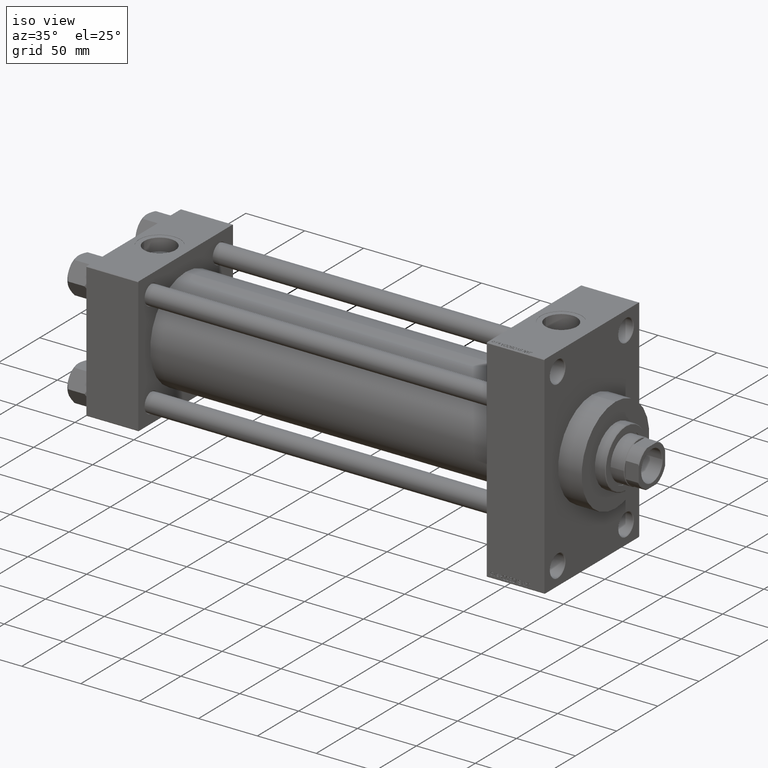
[diagram: clean part render]
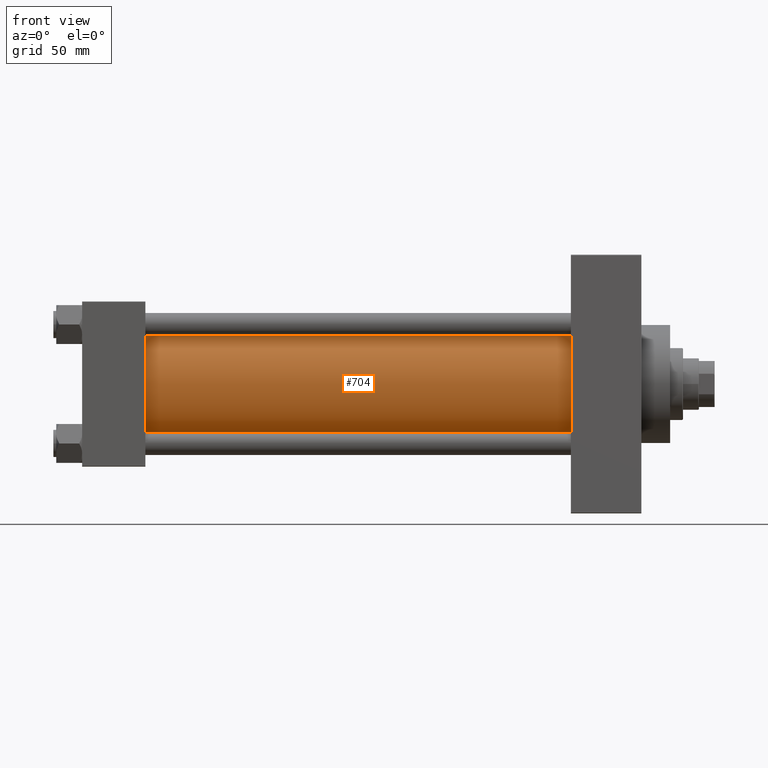
[diagram: tour spotlight — one face highlighted and labeled with its STEP entity id]
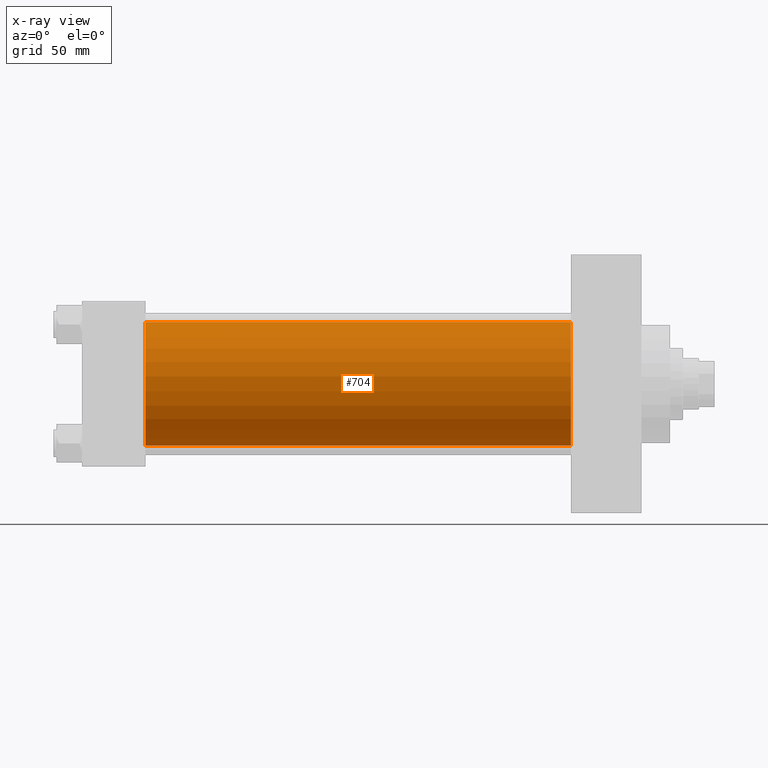
[diagram: x-ray of the same camera — body ghosted, this tour face saturated]
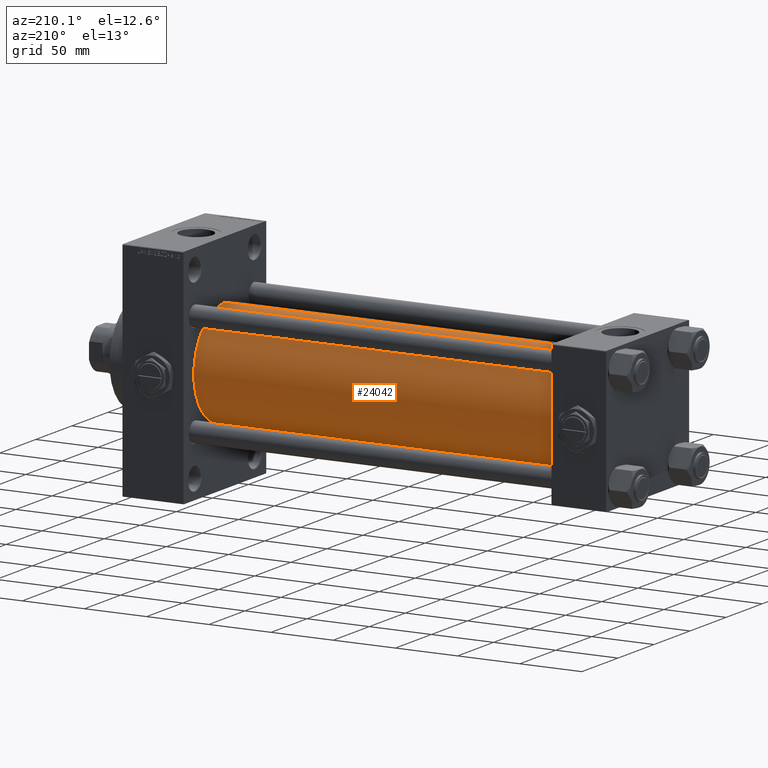
[diagram: tour spotlight — one face highlighted and labeled with its STEP entity id]
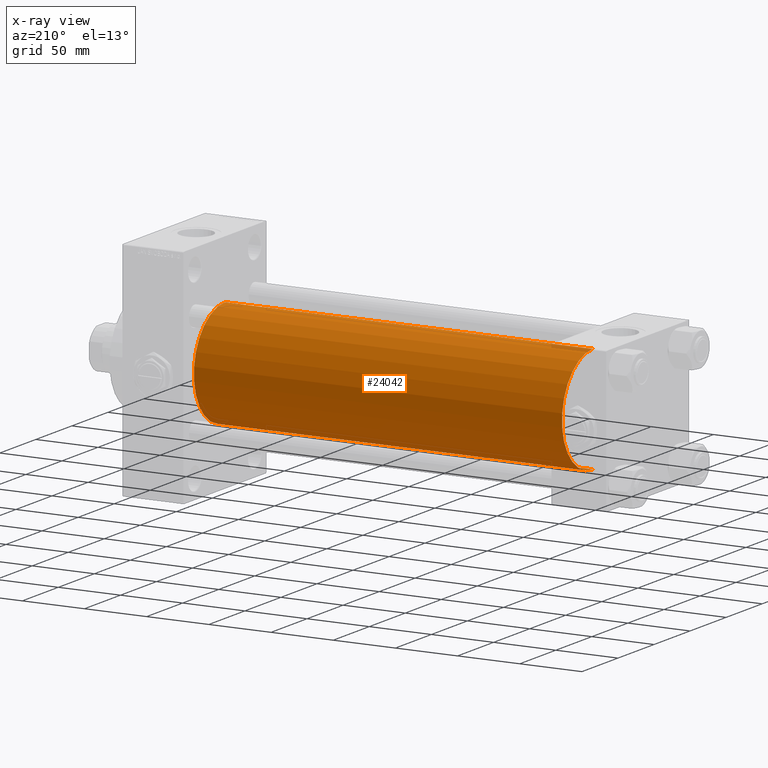
[diagram: x-ray of the same camera — body ghosted, this tour face saturated]
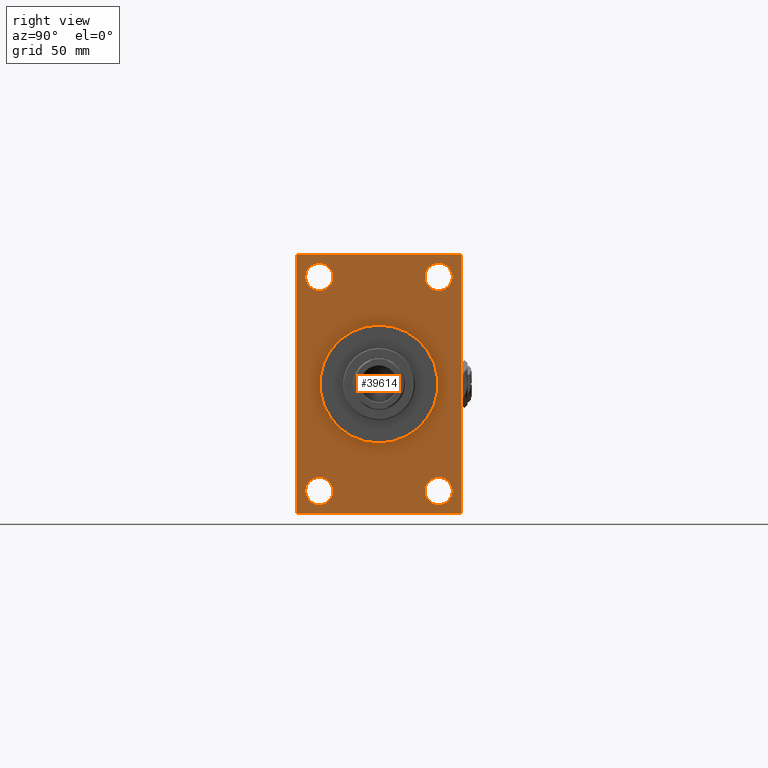
[diagram: tour spotlight — one face highlighted and labeled with its STEP entity id]
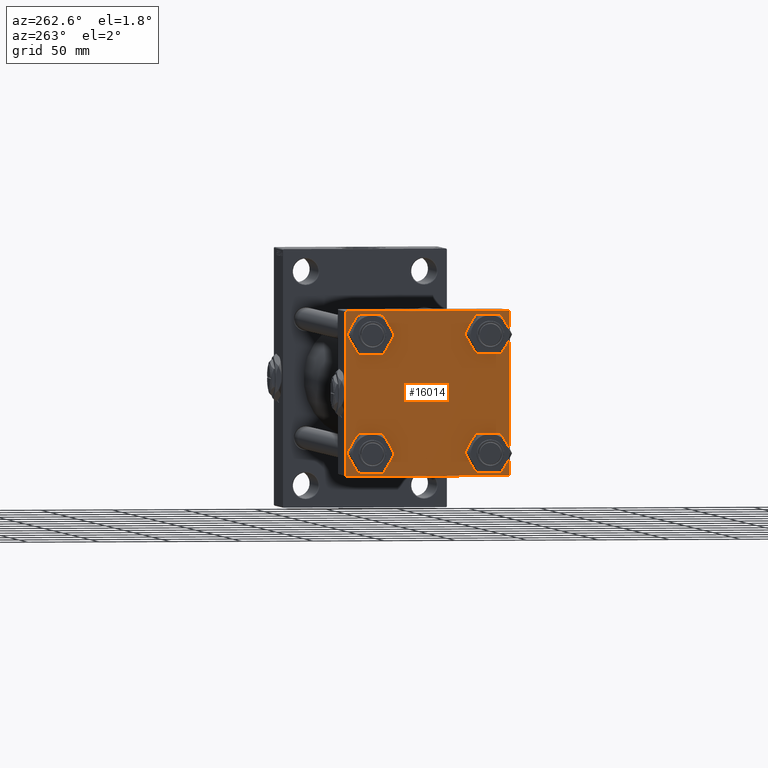
[diagram: tour spotlight — one face highlighted and labeled with its STEP entity id]
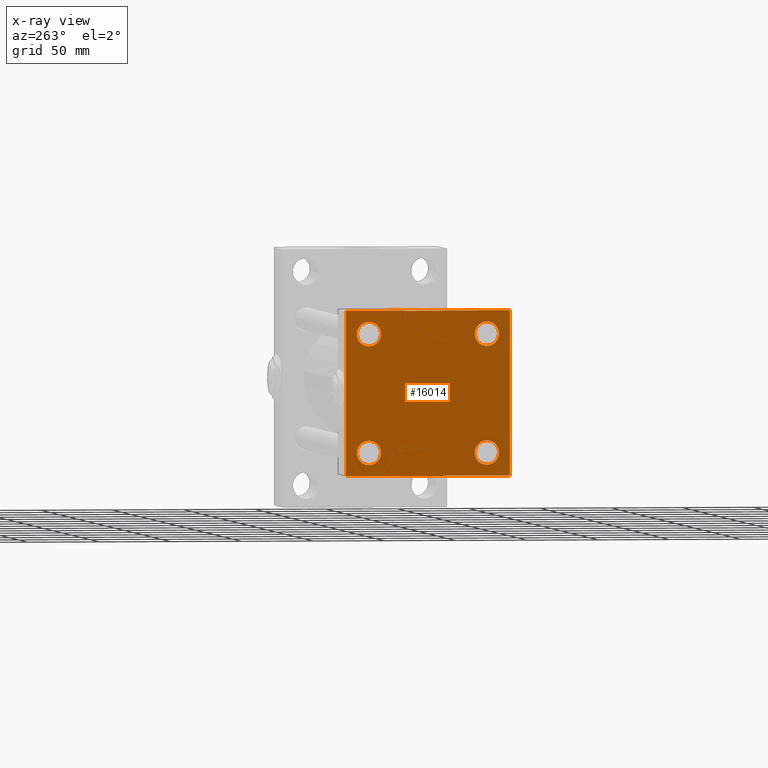
[diagram: x-ray of the same camera — body ghosted, this tour face saturated]
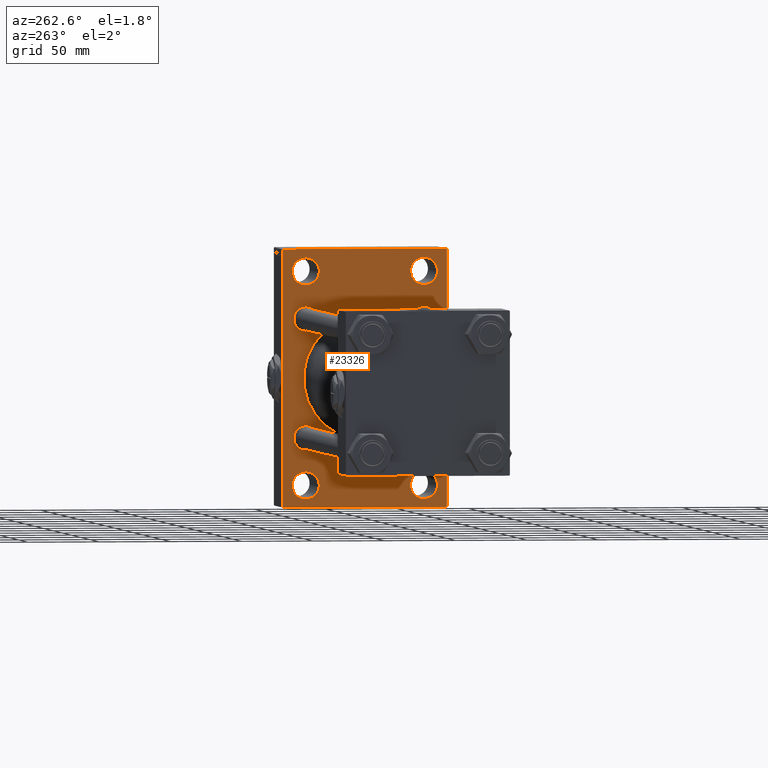
[diagram: tour spotlight — one face highlighted and labeled with its STEP entity id]
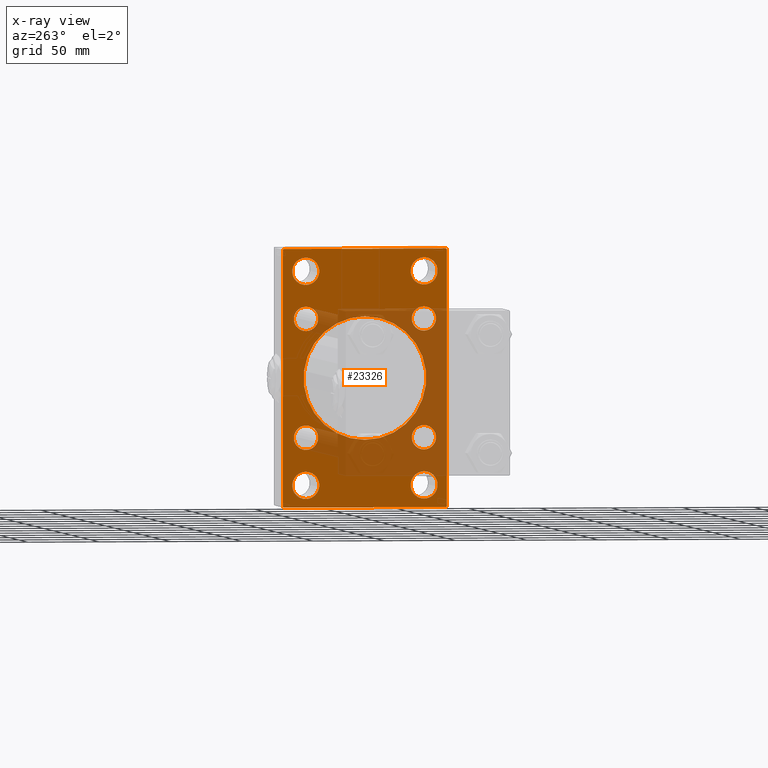
[diagram: x-ray of the same camera — body ghosted, this tour face saturated]
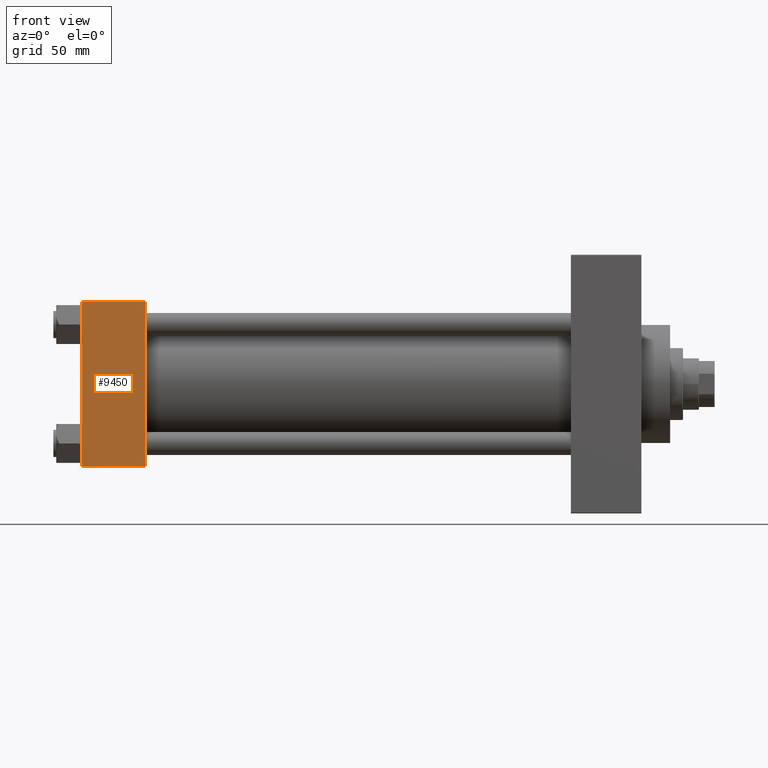
[diagram: tour spotlight — one face highlighted and labeled with its STEP entity id]
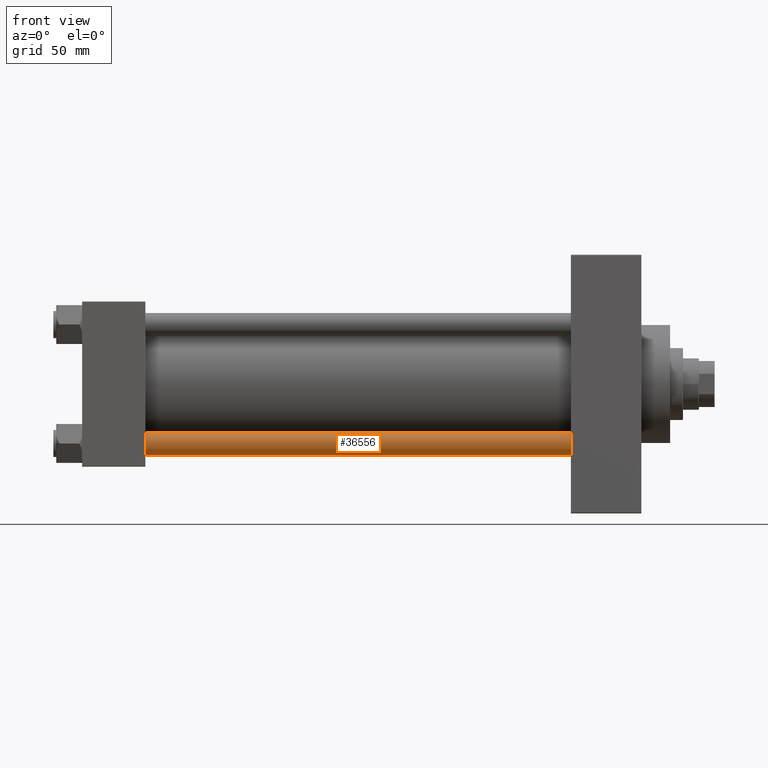
[diagram: tour spotlight — one face highlighted and labeled with its STEP entity id]
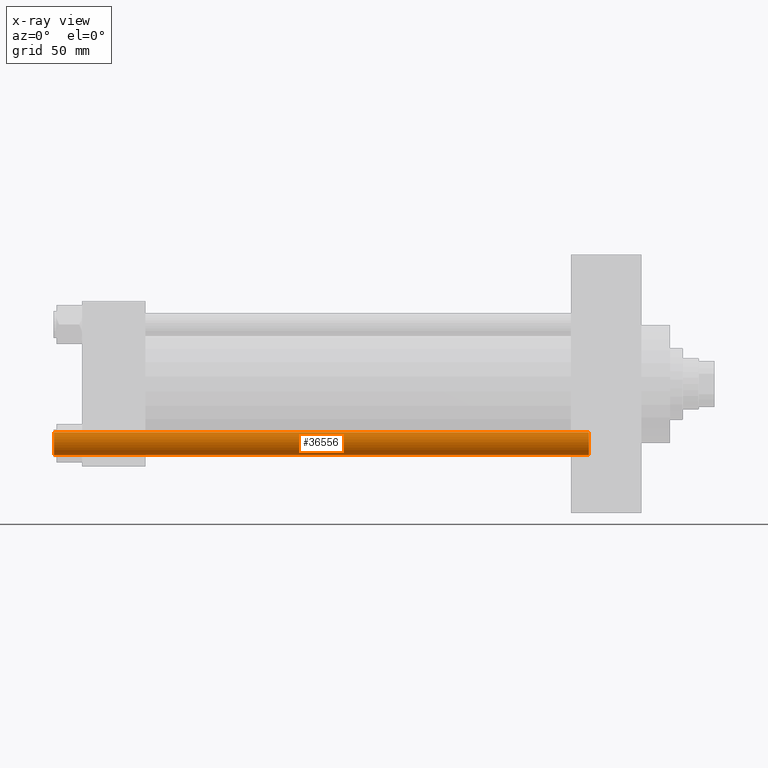
[diagram: x-ray of the same camera — body ghosted, this tour face saturated]
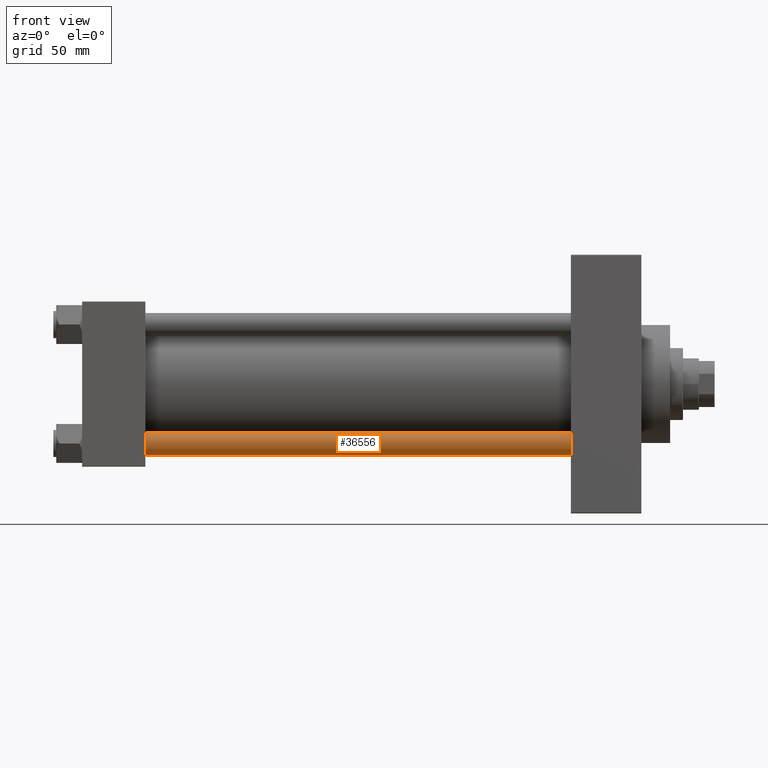
[diagram: tour spotlight — one face highlighted and labeled with its STEP entity id]
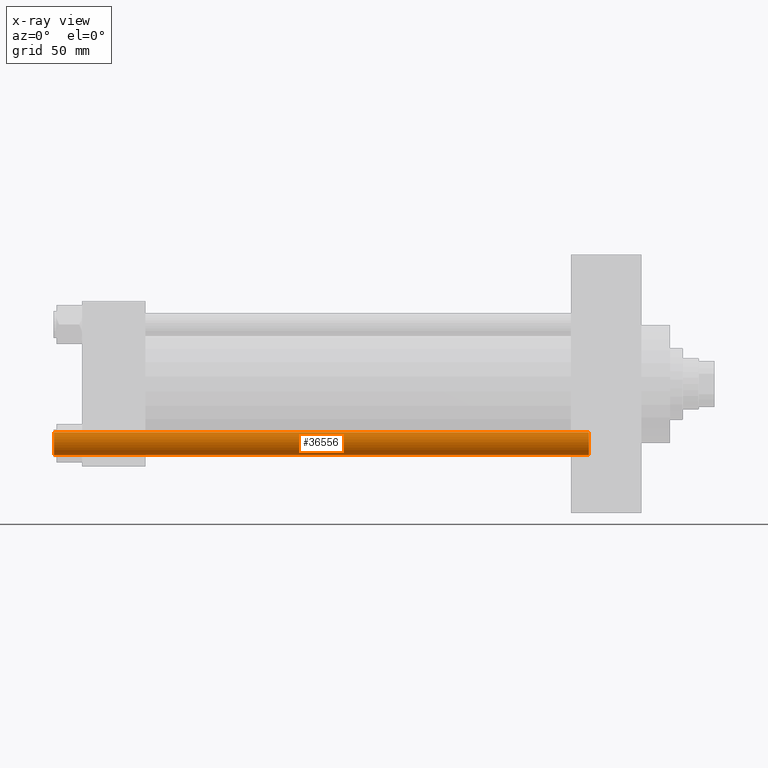
[diagram: x-ray of the same camera — body ghosted, this tour face saturated]
A machine part: a face-by-face anatomy tour. The part has 1252 B-rep faces; the first image is the clean iso view, then the 8 largest visible faces are spotlighted one at a time (largest first), each with its STEP entity span.

Face 1 — front view, entity #704. An x-ray twin of the same camera follows (body ghosted, this face saturated) — the face is partly hidden behind the body. In plain terms, the highlighted cylindrical surface (partial cylindrical patch) has radius 43 mm, axis along (-1, -0, -0).
Definition (entity closure, byte-faithful):
#696 = CARTESIAN_POINT ( 'NONE',  ( 339.9999999999999432, 2.663896022368408223E-15, -43.00000000000000000 ) ) ;
#704 = ADVANCED_FACE ( 'NONE', ( #40635 ), #10173, .T. ) ;
#1099 = CARTESIAN_POINT ( 'NONE',  ( 43.99999999999998579, -2.602085213965210642E-15, 0.000000000000000000 ) ) ;
#7237 = EDGE_CURVE ( 'NONE', #23898, #33211, #13362, .T. ) ;
#7978 = VERTEX_POINT ( 'NONE', #18108 ) ;
#9923 = DIRECTION ( 'NONE',  ( -1.000000000000000000, -0.000000000000000000, -0.000000000000000000 ) ) ;
#10173 = CYLINDRICAL_SURFACE ( 'NONE', #31004, 43.00000000000000000 ) ;
#10623 = CARTESIAN_POINT ( 'NONE',  ( 43.99999999999998579, 2.663896022368408223E-15, -43.00000000000000000 ) ) ;
#13362 = CIRCLE ( 'NONE', #25439, 43.00000000000000000 ) ;
#14534 = EDGE_CURVE ( 'NONE', #7978, #23898, #49542, .T. ) ;
#15099 = EDGE_LOOP ( 'NONE', ( #22846, #24336, #39010, #23355 ) ) ;
#16071 = DIRECTION ( 'NONE',  ( -1.000000000000000000, -0.000000000000000000, -0.000000000000000000 ) ) ;
#16479 = DIRECTION ( 'NONE',  ( 0.000000000000000000, 0.000000000000000000, 1.000000000000000000 ) ) ;
#16982 = DIRECTION ( 'NONE',  ( 1.000000000000000000, -0.000000000000000000, 0.000000000000000000 ) ) ;
#17241 = CARTESIAN_POINT ( 'NONE',  ( 339.9999999999999432, -2.602085213965210642E-15, 0.000000000000000000 ) ) ;
#18108 = CARTESIAN_POINT ( 'NONE',  ( 339.9999999999999432, -2.602085213965210642E-15, 43.00000000000000000 ) ) ;
#18816 = AXIS2_PLACEMENT_3D ( 'NONE', #26537, #33333, #48674 ) ;
#21125 = VECTOR ( 'NONE', #16071, 1000.000000000000000 ) ;
#22846 = ORIENTED_EDGE ( 'NONE', *, *, #28699, .F. ) ;
#23355 = ORIENTED_EDGE ( 'NONE', *, *, #7237, .T. ) ;
#23898 = VERTEX_POINT ( 'NONE', #28510 ) ;
#24085 = VERTEX_POINT ( 'NONE', #36490 ) ;
#24336 = ORIENTED_EDGE ( 'NONE', *, *, #40849, .F. ) ;
#25439 = AXIS2_PLACEMENT_3D ( 'NONE', #1099, #16982, #16479 ) ;
#26537 = CARTESIAN_POINT ( 'NONE',  ( 339.9999999999999432, -2.602085213965210642E-15, 0.000000000000000000 ) ) ;
#28510 = CARTESIAN_POINT ( 'NONE',  ( 43.99999999999998579, -2.602085213965210642E-15, 43.00000000000000000 ) ) ;
#28699 = EDGE_CURVE ( 'NONE', #24085, #33211, #38727, .T. ) ;
#30443 = CARTESIAN_POINT ( 'NONE',  ( 339.9999999999999432, -2.602085213965210642E-15, 43.00000000000000000 ) ) ;
#31004 = AXIS2_PLACEMENT_3D ( 'NONE', #17241, #9923, #32853 ) ;
#32853 = DIRECTION ( 'NONE',  ( 0.000000000000000000, 0.000000000000000000, 1.000000000000000000 ) ) ;
#33211 = VERTEX_POINT ( 'NONE', #10623 ) ;
#33333 = DIRECTION ( 'NONE',  ( 1.000000000000000000, 0.000000000000000000, 0.000000000000000000 ) ) ;
#36490 = CARTESIAN_POINT ( 'NONE',  ( 339.9999999999999432, 2.663896022368408223E-15, -43.00000000000000000 ) ) ;
#38727 = LINE ( 'NONE', #696, #21125 ) ;
#39010 = ORIENTED_EDGE ( 'NONE', *, *, #14534, .T. ) ;
#39212 = DIRECTION ( 'NONE',  ( -1.000000000000000000, -0.000000000000000000, -0.000000000000000000 ) ) ;
#40504 = CIRCLE ( 'NONE', #18816, 43.00000000000000000 ) ;
#40635 = FACE_OUTER_BOUND ( 'NONE', #15099, .T. ) ;
#40849 = EDGE_CURVE ( 'NONE', #7978, #24085, #40504, .T. ) ;
#44870 = VECTOR ( 'NONE', #39212, 1000.000000000000000 ) ;
#48674 = DIRECTION ( 'NONE',  ( 0.000000000000000000, 0.000000000000000000, -1.000000000000000000 ) ) ;
#49542 = LINE ( 'NONE', #30443, #44870 ) ;

Face 2 — auxiliary view, entity #24042. An x-ray twin of the same camera follows (body ghosted, this face saturated) — the face is partly hidden behind the body. In plain terms, the highlighted cylindrical surface (partial cylindrical patch) has radius 43 mm, axis along (-1, -0, -0).
Definition (entity closure, byte-faithful):
#696 = CARTESIAN_POINT ( 'NONE',  ( 339.9999999999999432, 2.663896022368408223E-15, -43.00000000000000000 ) ) ;
#919 = EDGE_CURVE ( 'NONE', #24085, #7978, #33413, .T. ) ;
#4772 = FACE_OUTER_BOUND ( 'NONE', #32007, .T. ) ;
#7814 = CARTESIAN_POINT ( 'NONE',  ( 339.9999999999999432, -2.602085213965210642E-15, 0.000000000000000000 ) ) ;
#7978 = VERTEX_POINT ( 'NONE', #18108 ) ;
#10168 = DIRECTION ( 'NONE',  ( 0.000000000000000000, 0.000000000000000000, 1.000000000000000000 ) ) ;
#10394 = ORIENTED_EDGE ( 'NONE', *, *, #28699, .T. ) ;
#10623 = CARTESIAN_POINT ( 'NONE',  ( 43.99999999999998579, 2.663896022368408223E-15, -43.00000000000000000 ) ) ;
#11693 = AXIS2_PLACEMENT_3D ( 'NONE', #47384, #27758, #42371 ) ;
#14534 = EDGE_CURVE ( 'NONE', #7978, #23898, #49542, .T. ) ;
#16071 = DIRECTION ( 'NONE',  ( -1.000000000000000000, -0.000000000000000000, -0.000000000000000000 ) ) ;
#18108 = CARTESIAN_POINT ( 'NONE',  ( 339.9999999999999432, -2.602085213965210642E-15, 43.00000000000000000 ) ) ;
#21125 = VECTOR ( 'NONE', #16071, 1000.000000000000000 ) ;
#22223 = ORIENTED_EDGE ( 'NONE', *, *, #919, .F. ) ;
#23184 = DIRECTION ( 'NONE',  ( -1.000000000000000000, -0.000000000000000000, -0.000000000000000000 ) ) ;
#23631 = EDGE_CURVE ( 'NONE', #33211, #23898, #30711, .T. ) ;
#23898 = VERTEX_POINT ( 'NONE', #28510 ) ;
#24042 = ADVANCED_FACE ( 'NONE', ( #4772 ), #39514, .T. ) ;
#24085 = VERTEX_POINT ( 'NONE', #36490 ) ;
#27556 = ORIENTED_EDGE ( 'NONE', *, *, #14534, .F. ) ;
#27560 = ORIENTED_EDGE ( 'NONE', *, *, #23631, .T. ) ;
#27758 = DIRECTION ( 'NONE',  ( 1.000000000000000000, 0.000000000000000000, 0.000000000000000000 ) ) ;
#28510 = CARTESIAN_POINT ( 'NONE',  ( 43.99999999999998579, -2.602085213965210642E-15, 43.00000000000000000 ) ) ;
#28571 = DIRECTION ( 'NONE',  ( 1.000000000000000000, -0.000000000000000000, 0.000000000000000000 ) ) ;
#28699 = EDGE_CURVE ( 'NONE', #24085, #33211, #38727, .T. ) ;
#30443 = CARTESIAN_POINT ( 'NONE',  ( 339.9999999999999432, -2.602085213965210642E-15, 43.00000000000000000 ) ) ;
#30711 = CIRCLE ( 'NONE', #47582, 43.00000000000000000 ) ;
#32007 = EDGE_LOOP ( 'NONE', ( #22223, #10394, #27560, #27556 ) ) ;
#33211 = VERTEX_POINT ( 'NONE', #10623 ) ;
#33413 = CIRCLE ( 'NONE', #11693, 43.00000000000000000 ) ;
#34750 = DIRECTION ( 'NONE',  ( 0.000000000000000000, 0.000000000000000000, 1.000000000000000000 ) ) ;
#34768 = AXIS2_PLACEMENT_3D ( 'NONE', #7814, #23184, #34750 ) ;
#36490 = CARTESIAN_POINT ( 'NONE',  ( 339.9999999999999432, 2.663896022368408223E-15, -43.00000000000000000 ) ) ;
#38727 = LINE ( 'NONE', #696, #21125 ) ;
#39212 = DIRECTION ( 'NONE',  ( -1.000000000000000000, -0.000000000000000000, -0.000000000000000000 ) ) ;
#39514 = CYLINDRICAL_SURFACE ( 'NONE', #34768, 43.00000000000000000 ) ;
#42371 = DIRECTION ( 'NONE',  ( 0.000000000000000000, 0.000000000000000000, -1.000000000000000000 ) ) ;
#44405 = CARTESIAN_POINT ( 'NONE',  ( 43.99999999999998579, -2.602085213965210642E-15, 0.000000000000000000 ) ) ;
#44870 = VECTOR ( 'NONE', #39212, 1000.000000000000000 ) ;
#47384 = CARTESIAN_POINT ( 'NONE',  ( 339.9999999999999432, -2.602085213965210642E-15, 0.000000000000000000 ) ) ;
#47582 = AXIS2_PLACEMENT_3D ( 'NONE', #44405, #28571, #10168 ) ;
#49542 = LINE ( 'NONE', #30443, #44870 ) ;

Face 3 — right view, entity #39614. In plain terms, the highlighted planar face has unit normal (-1, 0, 0).
Definition (entity closure, byte-faithful):
#74 = DIRECTION ( 'NONE',  ( 1.000000000000000000, 0.000000000000000000, 0.000000000000000000 ) ) ;
#83 = DIRECTION ( 'NONE',  ( -0.000000000000000000, 0.7071067811865573427, 0.7071067811865378028 ) ) ;
#632 = ORIENTED_EDGE ( 'NONE', *, *, #40075, .T. ) ;
#883 = CIRCLE ( 'NONE', #29060, 9.500000000000008882 ) ;
#1054 = LINE ( 'NONE', #5091, #29914 ) ;
#1091 = DIRECTION ( 'NONE',  ( -1.000000000000000000, 0.000000000000000000, -0.000000000000000000 ) ) ;
#1864 = CARTESIAN_POINT ( 'NONE',  ( 388.9999999999999432, -57.00000000000002132, -90.00000000000001421 ) ) ;
#1886 = DIRECTION ( 'NONE',  ( 0.000000000000000000, 0.000000000000000000, 1.000000000000000000 ) ) ;
#1891 = AXIS2_PLACEMENT_3D ( 'NONE', #45356, #34038, #42082 ) ;
#2129 = EDGE_CURVE ( 'NONE', #16355, #9231, #9372, .T. ) ;
#2205 = VECTOR ( 'NONE', #21507, 1000.000000000000000 ) ;
#2379 = PLANE ( 'NONE',  #30951 ) ;
#3693 = DIRECTION ( 'NONE',  ( 0.000000000000000000, -0.7071067811865474617, 0.7071067811865474617 ) ) ;
#4234 = CIRCLE ( 'NONE', #30826, 9.500000000000008882 ) ;
#4236 = CIRCLE ( 'NONE', #30780, 9.500000000000008882 ) ;
#4288 = VERTEX_POINT ( 'NONE', #33238 ) ;
#4372 = ORIENTED_EDGE ( 'NONE', *, *, #29079, .T. ) ;
#4460 = VERTEX_POINT ( 'NONE', #28670 ) ;
#5076 = CARTESIAN_POINT ( 'NONE',  ( 388.9999999999999432, 57.49999999999997158, 89.99999999999998579 ) ) ;
#5091 = CARTESIAN_POINT ( 'NONE',  ( 388.9999999999999432, 57.49999999999997158, 89.99999999999998579 ) ) ;
#5167 = CARTESIAN_POINT ( 'NONE',  ( 388.9999999999999432, -41.49999999999999289, -74.49999999999998579 ) ) ;
#5923 = AXIS2_PLACEMENT_3D ( 'NONE', #18011, #44432, #9709 ) ;
#6126 = CARTESIAN_POINT ( 'NONE',  ( 388.9999999999999432, 57.49999999999997868, -90.00000000000000000 ) ) ;
#6673 = EDGE_CURVE ( 'NONE', #27003, #40745, #34358, .T. ) ;
#6687 = DIRECTION ( 'NONE',  ( 0.000000000000000000, 0.000000000000000000, 1.000000000000000000 ) ) ;
#7721 = VERTEX_POINT ( 'NONE', #45327 ) ;
#7849 = ORIENTED_EDGE ( 'NONE', *, *, #29250, .T. ) ;
#8720 = ORIENTED_EDGE ( 'NONE', *, *, #22598, .T. ) ;
#8761 = CIRCLE ( 'NONE', #45740, 9.500000000000008882 ) ;
#8932 = DIRECTION ( 'NONE',  ( 0.000000000000000000, 0.7071067811865965336, -0.7071067811864985009 ) ) ;
#9231 = VERTEX_POINT ( 'NONE', #18805 ) ;
#9372 = LINE ( 'NONE', #5076, #38292 ) ;
#9665 = CARTESIAN_POINT ( 'NONE',  ( 388.9999999999999432, -41.49999999999999289, -64.99999999999997158 ) ) ;
#9709 = DIRECTION ( 'NONE',  ( 0.000000000000000000, 0.000000000000000000, -1.000000000000000000 ) ) ;
#10079 = EDGE_LOOP ( 'NONE', ( #20251, #41677 ) ) ;
#10192 = FACE_BOUND ( 'NONE', #10079, .T. ) ;
#10284 = EDGE_CURVE ( 'NONE', #27003, #36951, #25278, .T. ) ;
#11116 = CARTESIAN_POINT ( 'NONE',  ( 388.9999999999999432, -41.49999999999999289, -74.49999999999998579 ) ) ;
#11258 = LINE ( 'NONE', #45746, #34011 ) ;
#11268 = LINE ( 'NONE', #42960, #37868 ) ;
#11430 = CARTESIAN_POINT ( 'NONE',  ( 388.9999999999999432, 0.000000000000000000, 0.000000000000000000 ) ) ;
#11508 = ORIENTED_EDGE ( 'NONE', *, *, #36146, .F. ) ;
#12493 = EDGE_LOOP ( 'NONE', ( #42428, #632 ) ) ;
#12534 = LINE ( 'NONE', #36200, #17150 ) ;
#12676 = EDGE_CURVE ( 'NONE', #4460, #27745, #8761, .T. ) ;
#12982 = DIRECTION ( 'NONE',  ( -1.000000000000000000, 0.000000000000000000, -0.000000000000000000 ) ) ;
#13160 = CIRCLE ( 'NONE', #1891, 9.500000000000008882 ) ;
#13481 = CARTESIAN_POINT ( 'NONE',  ( 388.9999999999999432, 41.50000000000000711, 84.00000000000001421 ) ) ;
#13816 = EDGE_CURVE ( 'NONE', #7721, #25547, #36820, .T. ) ;
#14994 = ORIENTED_EDGE ( 'NONE', *, *, #41881, .T. ) ;
#15952 = CARTESIAN_POINT ( 'NONE',  ( 388.9999999999999432, 56.99999999999997158, 89.99999999999998579 ) ) ;
#16037 = DIRECTION ( 'NONE',  ( 0.000000000000000000, 0.000000000000000000, -1.000000000000000000 ) ) ;
#16355 = VERTEX_POINT ( 'NONE', #15952 ) ;
#16708 = AXIS2_PLACEMENT_3D ( 'NONE', #28261, #47621, #36056 ) ;
#17014 = FACE_OUTER_BOUND ( 'NONE', #30631, .T. ) ;
#17150 = VECTOR ( 'NONE', #43246, 1000.000000000000000 ) ;
#17754 = FACE_BOUND ( 'NONE', #12493, .T. ) ;
#18011 = CARTESIAN_POINT ( 'NONE',  ( 388.9999999999999432, 0.000000000000000000, 0.000000000000000000 ) ) ;
#18288 = DIRECTION ( 'NONE',  ( -1.000000000000000000, 0.000000000000000000, -0.000000000000000000 ) ) ;
#18432 = DIRECTION ( 'NONE',  ( -1.000000000000000000, 0.000000000000000000, -0.000000000000000000 ) ) ;
#18779 = EDGE_LOOP ( 'NONE', ( #47677, #14994 ) ) ;
#18805 = CARTESIAN_POINT ( 'NONE',  ( 388.9999999999999432, -57.00000000000007105, 89.99999999999997158 ) ) ;
#19159 = EDGE_LOOP ( 'NONE', ( #11508, #45367 ) ) ;
#19253 = DIRECTION ( 'NONE',  ( 0.000000000000000000, 0.000000000000000000, -1.000000000000000000 ) ) ;
#19800 = DIRECTION ( 'NONE',  ( -1.000000000000000000, 0.000000000000000000, -0.000000000000000000 ) ) ;
#19975 = DIRECTION ( 'NONE',  ( 0.000000000000000000, 3.854941057726238467E-17, -1.000000000000000000 ) ) ;
#20251 = ORIENTED_EDGE ( 'NONE', *, *, #13816, .T. ) ;
#20924 = CARTESIAN_POINT ( 'NONE',  ( 388.9999999999999432, -57.50000000000002132, -89.50000000000002842 ) ) ;
#21016 = CARTESIAN_POINT ( 'NONE',  ( 388.9999999999999432, -41.49999999999999289, 74.50000000000001421 ) ) ;
#21277 = CARTESIAN_POINT ( 'NONE',  ( 388.9999999999999432, 57.49999999999997868, -89.49999999999995737 ) ) ;
#21282 = CARTESIAN_POINT ( 'NONE',  ( 388.9999999999999432, 56.99999999999997868, -90.00000000000000000 ) ) ;
#21448 = EDGE_CURVE ( 'NONE', #48113, #42075, #11268, .T. ) ;
#21507 = DIRECTION ( 'NONE',  ( 0.000000000000000000, -1.000000000000000000, -1.206764157201257045E-16 ) ) ;
#22079 = CIRCLE ( 'NONE', #29288, 9.500000000000008882 ) ;
#22151 = CARTESIAN_POINT ( 'NONE',  ( 388.9999999999999432, 41.50000000000000711, -84.00000000000000000 ) ) ;
#22598 = EDGE_CURVE ( 'NONE', #4288, #42264, #883, .T. ) ;
#23040 = CARTESIAN_POINT ( 'NONE',  ( 388.9999999999999432, 0.000000000000000000, 41.00000000000000000 ) ) ;
#23601 = VERTEX_POINT ( 'NONE', #48673 ) ;
#23850 = CARTESIAN_POINT ( 'NONE',  ( 388.9999999999999432, -57.50000000000002132, 89.50000000000002842 ) ) ;
#24829 = FACE_BOUND ( 'NONE', #48090, .T. ) ;
#25076 = EDGE_CURVE ( 'NONE', #25547, #7721, #4236, .T. ) ;
#25247 = CIRCLE ( 'NONE', #5923, 41.00000000000000000 ) ;
#25278 = LINE ( 'NONE', #6126, #2205 ) ;
#25547 = VERTEX_POINT ( 'NONE', #13481 ) ;
#25693 = EDGE_CURVE ( 'NONE', #37505, #47394, #29161, .T. ) ;
#26226 = DIRECTION ( 'NONE',  ( 0.000000000000000000, 0.000000000000000000, 1.000000000000000000 ) ) ;
#26810 = CARTESIAN_POINT ( 'NONE',  ( 388.9999999999999432, 57.49999999999997868, -89.50000000000001421 ) ) ;
#26863 = CARTESIAN_POINT ( 'NONE',  ( 388.9999999999999432, 41.50000000000000711, -74.50000000000000000 ) ) ;
#27003 = VERTEX_POINT ( 'NONE', #21282 ) ;
#27745 = VERTEX_POINT ( 'NONE', #30572 ) ;
#27899 = EDGE_CURVE ( 'NONE', #23601, #40745, #1054, .T. ) ;
#27957 = CARTESIAN_POINT ( 'NONE',  ( 388.9999999999999432, 41.50000000000000711, 74.50000000000001421 ) ) ;
#28041 = CARTESIAN_POINT ( 'NONE',  ( 388.9999999999999432, 5.021051876504148963E-15, -41.00000000000000000 ) ) ;
#28261 = CARTESIAN_POINT ( 'NONE',  ( 388.9999999999999432, 41.50000000000000711, 74.50000000000001421 ) ) ;
#28597 = DIRECTION ( 'NONE',  ( -0.000000000000000000, 0.000000000000000000, 1.000000000000000000 ) ) ;
#28670 = CARTESIAN_POINT ( 'NONE',  ( 388.9999999999999432, -41.49999999999999289, 65.00000000000000000 ) ) ;
#29060 = AXIS2_PLACEMENT_3D ( 'NONE', #44962, #18288, #6687 ) ;
#29079 = EDGE_CURVE ( 'NONE', #42264, #4288, #4234, .T. ) ;
#29082 = DIRECTION ( 'NONE',  ( -1.000000000000000000, 0.000000000000000000, -0.000000000000000000 ) ) ;
#29161 = CIRCLE ( 'NONE', #48372, 9.500000000000008882 ) ;
#29250 = EDGE_CURVE ( 'NONE', #23601, #16355, #11258, .T. ) ;
#29288 = AXIS2_PLACEMENT_3D ( 'NONE', #11116, #18432, #26226 ) ;
#29297 = ORIENTED_EDGE ( 'NONE', *, *, #27899, .F. ) ;
#29914 = VECTOR ( 'NONE', #19975, 1000.000000000000000 ) ;
#30025 = ORIENTED_EDGE ( 'NONE', *, *, #40676, .T. ) ;
#30209 = VERTEX_POINT ( 'NONE', #23040 ) ;
#30572 = CARTESIAN_POINT ( 'NONE',  ( 388.9999999999999432, -41.49999999999999289, 84.00000000000001421 ) ) ;
#30631 = EDGE_LOOP ( 'NONE', ( #31273, #30025, #41982, #36322, #29297, #7849, #44953, #38390 ) ) ;
#30780 = AXIS2_PLACEMENT_3D ( 'NONE', #27957, #43550, #43304 ) ;
#30826 = AXIS2_PLACEMENT_3D ( 'NONE', #26863, #19800, #34415 ) ;
#30951 = AXIS2_PLACEMENT_3D ( 'NONE', #48697, #29082, #28597 ) ;
#31273 = ORIENTED_EDGE ( 'NONE', *, *, #21448, .T. ) ;
#32036 = DIRECTION ( 'NONE',  ( 0.000000000000000000, -1.000000000000000000, -1.206764157201257291E-16 ) ) ;
#32241 = EDGE_CURVE ( 'NONE', #36354, #30209, #40367, .T. ) ;
#33238 = CARTESIAN_POINT ( 'NONE',  ( 388.9999999999999432, 41.50000000000000711, -64.99999999999998579 ) ) ;
#34011 = VECTOR ( 'NONE', #3693, 1000.000000000000114 ) ;
#34038 = DIRECTION ( 'NONE',  ( -1.000000000000000000, 0.000000000000000000, -0.000000000000000000 ) ) ;
#34112 = VECTOR ( 'NONE', #8932, 1000.000000000000114 ) ;
#34358 = LINE ( 'NONE', #26810, #40709 ) ;
#34415 = DIRECTION ( 'NONE',  ( 0.000000000000000000, 0.000000000000000000, 1.000000000000000000 ) ) ;
#35778 = EDGE_CURVE ( 'NONE', #9231, #48113, #12534, .T. ) ;
#36056 = DIRECTION ( 'NONE',  ( 0.000000000000000000, 0.000000000000000000, 1.000000000000000000 ) ) ;
#36146 = EDGE_CURVE ( 'NONE', #30209, #36354, #25247, .T. ) ;
#36200 = CARTESIAN_POINT ( 'NONE',  ( 388.9999999999999432, -57.50000000000002132, 89.50000000000002842 ) ) ;
#36322 = ORIENTED_EDGE ( 'NONE', *, *, #6673, .T. ) ;
#36354 = VERTEX_POINT ( 'NONE', #28041 ) ;
#36820 = CIRCLE ( 'NONE', #16708, 9.500000000000008882 ) ;
#36951 = VERTEX_POINT ( 'NONE', #42151 ) ;
#37505 = VERTEX_POINT ( 'NONE', #41931 ) ;
#37868 = VECTOR ( 'NONE', #16037, 1000.000000000000000 ) ;
#38292 = VECTOR ( 'NONE', #32036, 1000.000000000000000 ) ;
#38390 = ORIENTED_EDGE ( 'NONE', *, *, #35778, .T. ) ;
#39614 = ADVANCED_FACE ( 'NONE', ( #17754, #40415, #24829, #10192, #40175, #17014 ), #2379, .F. ) ;
#40075 = EDGE_CURVE ( 'NONE', #27745, #4460, #13160, .T. ) ;
#40175 = FACE_BOUND ( 'NONE', #19159, .T. ) ;
#40367 = CIRCLE ( 'NONE', #42760, 41.00000000000000000 ) ;
#40415 = FACE_BOUND ( 'NONE', #18779, .T. ) ;
#40676 = EDGE_CURVE ( 'NONE', #42075, #36951, #43415, .T. ) ;
#40709 = VECTOR ( 'NONE', #83, 1000.000000000000000 ) ;
#40745 = VERTEX_POINT ( 'NONE', #21277 ) ;
#41677 = ORIENTED_EDGE ( 'NONE', *, *, #25076, .T. ) ;
#41881 = EDGE_CURVE ( 'NONE', #47394, #37505, #22079, .T. ) ;
#41931 = CARTESIAN_POINT ( 'NONE',  ( 388.9999999999999432, -41.49999999999999289, -83.99999999999998579 ) ) ;
#41982 = ORIENTED_EDGE ( 'NONE', *, *, #10284, .F. ) ;
#42075 = VERTEX_POINT ( 'NONE', #20924 ) ;
#42082 = DIRECTION ( 'NONE',  ( 0.000000000000000000, 0.000000000000000000, 1.000000000000000000 ) ) ;
#42151 = CARTESIAN_POINT ( 'NONE',  ( 388.9999999999999432, -57.00000000000002132, -90.00000000000001421 ) ) ;
#42264 = VERTEX_POINT ( 'NONE', #22151 ) ;
#42428 = ORIENTED_EDGE ( 'NONE', *, *, #12676, .T. ) ;
#42760 = AXIS2_PLACEMENT_3D ( 'NONE', #11430, #74, #19253 ) ;
#42960 = CARTESIAN_POINT ( 'NONE',  ( 388.9999999999999432, -57.50000000000002132, 89.99999999999997158 ) ) ;
#43246 = DIRECTION ( 'NONE',  ( -0.000000000000000000, -0.7071067811865524577, -0.7071067811865426878 ) ) ;
#43304 = DIRECTION ( 'NONE',  ( 0.000000000000000000, 0.000000000000000000, 1.000000000000000000 ) ) ;
#43415 = LINE ( 'NONE', #1864, #34112 ) ;
#43550 = DIRECTION ( 'NONE',  ( -1.000000000000000000, 0.000000000000000000, -0.000000000000000000 ) ) ;
#44432 = DIRECTION ( 'NONE',  ( 1.000000000000000000, 0.000000000000000000, 0.000000000000000000 ) ) ;
#44953 = ORIENTED_EDGE ( 'NONE', *, *, #2129, .T. ) ;
#44962 = CARTESIAN_POINT ( 'NONE',  ( 388.9999999999999432, 41.50000000000000711, -74.50000000000000000 ) ) ;
#45327 = CARTESIAN_POINT ( 'NONE',  ( 388.9999999999999432, 41.50000000000000711, 65.00000000000000000 ) ) ;
#45356 = CARTESIAN_POINT ( 'NONE',  ( 388.9999999999999432, -41.49999999999999289, 74.50000000000001421 ) ) ;
#45367 = ORIENTED_EDGE ( 'NONE', *, *, #32241, .F. ) ;
#45740 = AXIS2_PLACEMENT_3D ( 'NONE', #21016, #1091, #47428 ) ;
#45746 = CARTESIAN_POINT ( 'NONE',  ( 388.9999999999999432, 56.99999999999997158, 89.99999999999998579 ) ) ;
#47394 = VERTEX_POINT ( 'NONE', #9665 ) ;
#47428 = DIRECTION ( 'NONE',  ( 0.000000000000000000, 0.000000000000000000, 1.000000000000000000 ) ) ;
#47621 = DIRECTION ( 'NONE',  ( -1.000000000000000000, 0.000000000000000000, -0.000000000000000000 ) ) ;
#47677 = ORIENTED_EDGE ( 'NONE', *, *, #25693, .T. ) ;
#48090 = EDGE_LOOP ( 'NONE', ( #4372, #8720 ) ) ;
#48113 = VERTEX_POINT ( 'NONE', #23850 ) ;
#48372 = AXIS2_PLACEMENT_3D ( 'NONE', #5167, #12982, #1886 ) ;
#48673 = CARTESIAN_POINT ( 'NONE',  ( 388.9999999999999432, 57.49999999999997158, 89.49999999999998579 ) ) ;
#48697 = CARTESIAN_POINT ( 'NONE',  ( 388.9999999999999432, 0.000000000000000000, 0.000000000000000000 ) ) ;

Face 4 — auxiliary view, entity #16014. An x-ray twin of the same camera follows (body ghosted, this face saturated) — the face is partly hidden behind the body. In plain terms, the highlighted planar face has unit normal (-1, 0, 0).
Definition (entity closure, byte-faithful):
#67 = CARTESIAN_POINT ( 'NONE',  ( 0.000000000000000000, 57.49999999999999289, -57.00000000000000711 ) ) ;
#234 = ORIENTED_EDGE ( 'NONE', *, *, #30085, .T. ) ;
#1405 = DIRECTION ( 'NONE',  ( 0.000000000000000000, 0.000000000000000000, 1.000000000000000000 ) ) ;
#1436 = VERTEX_POINT ( 'NONE', #28128 ) ;
#1998 = CARTESIAN_POINT ( 'NONE',  ( 0.000000000000000000, 57.25000000000081712, -57.24999999999922551 ) ) ;
#3352 = EDGE_CURVE ( 'NONE', #12133, #38314, #25183, .T. ) ;
#3429 = DIRECTION ( 'NONE',  ( 1.000000000000000000, -0.000000000000000000, 0.000000000000000000 ) ) ;
#3605 = LINE ( 'NONE', #6638, #41359 ) ;
#3925 = FACE_BOUND ( 'NONE', #22160, .T. ) ;
#4603 = CARTESIAN_POINT ( 'NONE',  ( 0.000000000000000000, -57.50000000000000711, 57.00000000000000711 ) ) ;
#5067 = EDGE_CURVE ( 'NONE', #32909, #47297, #37430, .T. ) ;
#5104 = CIRCLE ( 'NONE', #33251, 8.499999999999992895 ) ;
#5186 = DIRECTION ( 'NONE',  ( 1.000000000000000000, -0.000000000000000000, 0.000000000000000000 ) ) ;
#5188 = VERTEX_POINT ( 'NONE', #14103 ) ;
#5313 = ORIENTED_EDGE ( 'NONE', *, *, #25425, .T. ) ;
#5528 = DIRECTION ( 'NONE',  ( 0.000000000000000000, -0.7071067811865474617, 0.7071067811865474617 ) ) ;
#5676 = EDGE_CURVE ( 'NONE', #13808, #48663, #6094, .T. ) ;
#5933 = DIRECTION ( 'NONE',  ( 1.000000000000000000, -0.000000000000000000, 0.000000000000000000 ) ) ;
#6019 = VERTEX_POINT ( 'NONE', #34495 ) ;
#6094 = CIRCLE ( 'NONE', #16523, 8.499999999999992895 ) ;
#6281 = DIRECTION ( 'NONE',  ( -0.000000000000000000, -0.7071067811865376918, -0.7071067811865573427 ) ) ;
#6638 = CARTESIAN_POINT ( 'NONE',  ( 0.000000000000000000, 57.24999999999922551, 57.25000000000081712 ) ) ;
#6889 = ORIENTED_EDGE ( 'NONE', *, *, #45234, .T. ) ;
#8384 = DIRECTION ( 'NONE',  ( 0.000000000000000000, -1.000000000000000000, -1.206764157201257045E-16 ) ) ;
#8450 = DIRECTION ( 'NONE',  ( -0.000000000000000000, 0.000000000000000000, 1.000000000000000000 ) ) ;
#8594 = DIRECTION ( 'NONE',  ( 1.000000000000000000, -0.000000000000000000, 0.000000000000000000 ) ) ;
#8687 = VECTOR ( 'NONE', #31297, 1000.000000000000000 ) ;
#9285 = ORIENTED_EDGE ( 'NONE', *, *, #36836, .T. ) ;
#9623 = CARTESIAN_POINT ( 'NONE',  ( 0.000000000000000000, -41.34999999999998721, -49.85000000000000853 ) ) ;
#10325 = AXIS2_PLACEMENT_3D ( 'NONE', #39413, #31868, #8450 ) ;
#10432 = CARTESIAN_POINT ( 'NONE',  ( 0.000000000000000000, 57.00000000000000711, 57.50000000000000711 ) ) ;
#11064 = VECTOR ( 'NONE', #5528, 1000.000000000000114 ) ;
#11370 = EDGE_CURVE ( 'NONE', #33001, #5188, #12388, .T. ) ;
#11396 = EDGE_LOOP ( 'NONE', ( #5313, #9285 ) ) ;
#11710 = VECTOR ( 'NONE', #45092, 1000.000000000000000 ) ;
#11981 = FACE_BOUND ( 'NONE', #40304, .T. ) ;
#12133 = VERTEX_POINT ( 'NONE', #67 ) ;
#12388 = LINE ( 'NONE', #38099, #8687 ) ;
#12957 = CIRCLE ( 'NONE', #13741, 8.499999999999992895 ) ;
#13085 = CARTESIAN_POINT ( 'NONE',  ( 0.000000000000000000, 41.34999999999999432, -32.85000000000000853 ) ) ;
#13099 = AXIS2_PLACEMENT_3D ( 'NONE', #28275, #23749, #35815 ) ;
#13741 = AXIS2_PLACEMENT_3D ( 'NONE', #43078, #8594, #23965 ) ;
#13808 = VERTEX_POINT ( 'NONE', #9623 ) ;
#14043 = ORIENTED_EDGE ( 'NONE', *, *, #11370, .F. ) ;
#14103 = CARTESIAN_POINT ( 'NONE',  ( 0.000000000000000000, -57.50000000000000711, -57.00000000000000711 ) ) ;
#14706 = CARTESIAN_POINT ( 'NONE',  ( 0.000000000000000000, 41.34999999999999432, -41.35000000000000142 ) ) ;
#14933 = CARTESIAN_POINT ( 'NONE',  ( -0.000000000000000000, -57.25000000000081712, 57.24999999999922551 ) ) ;
#15343 = ORIENTED_EDGE ( 'NONE', *, *, #33776, .T. ) ;
#15466 = VECTOR ( 'NONE', #44011, 1000.000000000000000 ) ;
#16014 = ADVANCED_FACE ( 'NONE', ( #16510, #11981, #19795, #3925, #16258 ), #35385, .T. ) ;
#16258 = FACE_OUTER_BOUND ( 'NONE', #16345, .T. ) ;
#16305 = CARTESIAN_POINT ( 'NONE',  ( 0.000000000000000000, -57.00000000000000711, -57.50000000000000711 ) ) ;
#16329 = CARTESIAN_POINT ( 'NONE',  ( 0.000000000000000000, 57.49999999999999289, -57.49999999999999289 ) ) ;
#16345 = EDGE_LOOP ( 'NONE', ( #6889, #28752, #15343, #32272, #14043, #21128, #36458, #27005 ) ) ;
#16510 = FACE_BOUND ( 'NONE', #11396, .T. ) ;
#16523 = AXIS2_PLACEMENT_3D ( 'NONE', #32891, #5933, #1405 ) ;
#18312 = CARTESIAN_POINT ( 'NONE',  ( 0.000000000000000000, 41.34999999999999432, -49.85000000000000142 ) ) ;
#18727 = DIRECTION ( 'NONE',  ( -0.000000000000000000, 0.7071067811865376918, 0.7071067811865573427 ) ) ;
#18988 = DIRECTION ( 'NONE',  ( 0.000000000000000000, 0.7071067811865573427, -0.7071067811865376918 ) ) ;
#19547 = CIRCLE ( 'NONE', #30001, 8.499999999999992895 ) ;
#19795 = FACE_BOUND ( 'NONE', #35370, .T. ) ;
#19862 = LINE ( 'NONE', #16329, #15466 ) ;
#20499 = CIRCLE ( 'NONE', #27710, 8.499999999999992895 ) ;
#20566 = DIRECTION ( 'NONE',  ( 0.000000000000000000, 0.000000000000000000, 1.000000000000000000 ) ) ;
#20998 = EDGE_CURVE ( 'NONE', #47297, #32909, #12957, .T. ) ;
#21094 = CIRCLE ( 'NONE', #13099, 8.499999999999992895 ) ;
#21128 = ORIENTED_EDGE ( 'NONE', *, *, #31272, .T. ) ;
#21185 = CARTESIAN_POINT ( 'NONE',  ( 0.000000000000000000, 41.34999999999999432, 41.35000000000000142 ) ) ;
#22160 = EDGE_LOOP ( 'NONE', ( #37215, #43008 ) ) ;
#22162 = AXIS2_PLACEMENT_3D ( 'NONE', #21185, #36518, #29715 ) ;
#22337 = DIRECTION ( 'NONE',  ( 0.000000000000000000, 0.000000000000000000, 1.000000000000000000 ) ) ;
#22830 = CARTESIAN_POINT ( 'NONE',  ( 0.000000000000000000, -41.34999999999998721, 49.85000000000000853 ) ) ;
#23224 = VERTEX_POINT ( 'NONE', #16305 ) ;
#23634 = VECTOR ( 'NONE', #18727, 1000.000000000000114 ) ;
#23749 = DIRECTION ( 'NONE',  ( 1.000000000000000000, -0.000000000000000000, 0.000000000000000000 ) ) ;
#23965 = DIRECTION ( 'NONE',  ( 0.000000000000000000, 0.000000000000000000, 1.000000000000000000 ) ) ;
#24538 = ORIENTED_EDGE ( 'NONE', *, *, #27937, .T. ) ;
#25183 = LINE ( 'NONE', #1998, #26306 ) ;
#25425 = EDGE_CURVE ( 'NONE', #42567, #6019, #19547, .T. ) ;
#25445 = VERTEX_POINT ( 'NONE', #18312 ) ;
#26207 = CARTESIAN_POINT ( 'NONE',  ( 0.000000000000000000, -41.34999999999998721, -32.85000000000001563 ) ) ;
#26306 = VECTOR ( 'NONE', #6281, 1000.000000000000114 ) ;
#27005 = ORIENTED_EDGE ( 'NONE', *, *, #41552, .T. ) ;
#27710 = AXIS2_PLACEMENT_3D ( 'NONE', #14706, #30077, #45408 ) ;
#27937 = EDGE_CURVE ( 'NONE', #48663, #13808, #21094, .T. ) ;
#28128 = CARTESIAN_POINT ( 'NONE',  ( 0.000000000000000000, -57.00000000000003553, 57.49999999999999289 ) ) ;
#28275 = CARTESIAN_POINT ( 'NONE',  ( 0.000000000000000000, -41.34999999999998721, -41.35000000000000853 ) ) ;
#28685 = ORIENTED_EDGE ( 'NONE', *, *, #38869, .T. ) ;
#28752 = ORIENTED_EDGE ( 'NONE', *, *, #3352, .T. ) ;
#29501 = LINE ( 'NONE', #43676, #11710 ) ;
#29640 = CARTESIAN_POINT ( 'NONE',  ( 0.000000000000000000, -41.34999999999998721, 41.35000000000000853 ) ) ;
#29715 = DIRECTION ( 'NONE',  ( 0.000000000000000000, 0.000000000000000000, 1.000000000000000000 ) ) ;
#29902 = ORIENTED_EDGE ( 'NONE', *, *, #5676, .T. ) ;
#30001 = AXIS2_PLACEMENT_3D ( 'NONE', #29640, #3429, #22337 ) ;
#30077 = DIRECTION ( 'NONE',  ( 1.000000000000000000, -0.000000000000000000, 0.000000000000000000 ) ) ;
#30085 = EDGE_CURVE ( 'NONE', #25445, #49379, #5104, .T. ) ;
#30090 = CARTESIAN_POINT ( 'NONE',  ( 0.000000000000000000, -41.34999999999998721, 41.35000000000000853 ) ) ;
#31272 = EDGE_CURVE ( 'NONE', #33001, #1436, #38341, .T. ) ;
#31297 = DIRECTION ( 'NONE',  ( 0.000000000000000000, 0.000000000000000000, -1.000000000000000000 ) ) ;
#31670 = CIRCLE ( 'NONE', #46100, 8.499999999999992895 ) ;
#31868 = DIRECTION ( 'NONE',  ( -1.000000000000000000, 0.000000000000000000, -0.000000000000000000 ) ) ;
#32272 = ORIENTED_EDGE ( 'NONE', *, *, #49436, .T. ) ;
#32891 = CARTESIAN_POINT ( 'NONE',  ( 0.000000000000000000, -41.34999999999998721, -41.35000000000000853 ) ) ;
#32909 = VERTEX_POINT ( 'NONE', #36632 ) ;
#33001 = VERTEX_POINT ( 'NONE', #4603 ) ;
#33251 = AXIS2_PLACEMENT_3D ( 'NONE', #39685, #5186, #20566 ) ;
#33776 = EDGE_CURVE ( 'NONE', #38314, #23224, #19862, .T. ) ;
#34495 = CARTESIAN_POINT ( 'NONE',  ( 0.000000000000000000, -41.34999999999998721, 32.85000000000001563 ) ) ;
#35295 = VERTEX_POINT ( 'NONE', #10432 ) ;
#35321 = CARTESIAN_POINT ( 'NONE',  ( 0.000000000000000000, 57.49999999999999289, 57.50000000000000711 ) ) ;
#35370 = EDGE_LOOP ( 'NONE', ( #28685, #234 ) ) ;
#35385 = PLANE ( 'NONE',  #10325 ) ;
#35576 = EDGE_CURVE ( 'NONE', #35295, #1436, #39348, .T. ) ;
#35815 = DIRECTION ( 'NONE',  ( 0.000000000000000000, 0.000000000000000000, 1.000000000000000000 ) ) ;
#36458 = ORIENTED_EDGE ( 'NONE', *, *, #35576, .F. ) ;
#36487 = LINE ( 'NONE', #40026, #11064 ) ;
#36518 = DIRECTION ( 'NONE',  ( 1.000000000000000000, -0.000000000000000000, 0.000000000000000000 ) ) ;
#36632 = CARTESIAN_POINT ( 'NONE',  ( 0.000000000000000000, 41.34999999999999432, 49.85000000000000142 ) ) ;
#36836 = EDGE_CURVE ( 'NONE', #6019, #42567, #31670, .T. ) ;
#37215 = ORIENTED_EDGE ( 'NONE', *, *, #5067, .T. ) ;
#37430 = CIRCLE ( 'NONE', #22162, 8.499999999999992895 ) ;
#38099 = CARTESIAN_POINT ( 'NONE',  ( 0.000000000000000000, -57.50000000000000711, 57.49999999999999289 ) ) ;
#38314 = VERTEX_POINT ( 'NONE', #38969 ) ;
#38341 = LINE ( 'NONE', #14933, #23634 ) ;
#38869 = EDGE_CURVE ( 'NONE', #49379, #25445, #20499, .T. ) ;
#38969 = CARTESIAN_POINT ( 'NONE',  ( 0.000000000000000000, 57.00000000000002132, -57.49999999999999289 ) ) ;
#39348 = LINE ( 'NONE', #35321, #39647 ) ;
#39413 = CARTESIAN_POINT ( 'NONE',  ( 0.000000000000000000, 0.000000000000000000, 0.000000000000000000 ) ) ;
#39647 = VECTOR ( 'NONE', #8384, 1000.000000000000000 ) ;
#39685 = CARTESIAN_POINT ( 'NONE',  ( 0.000000000000000000, 41.34999999999999432, -41.35000000000000142 ) ) ;
#40026 = CARTESIAN_POINT ( 'NONE',  ( 0.000000000000000000, -57.25000000000000711, -57.25000000000000711 ) ) ;
#40304 = EDGE_LOOP ( 'NONE', ( #24538, #29902 ) ) ;
#41359 = VECTOR ( 'NONE', #18988, 1000.000000000000114 ) ;
#41552 = EDGE_CURVE ( 'NONE', #35295, #44456, #3605, .T. ) ;
#42567 = VERTEX_POINT ( 'NONE', #22830 ) ;
#43008 = ORIENTED_EDGE ( 'NONE', *, *, #20998, .T. ) ;
#43078 = CARTESIAN_POINT ( 'NONE',  ( 0.000000000000000000, 41.34999999999999432, 41.35000000000000142 ) ) ;
#43394 = CARTESIAN_POINT ( 'NONE',  ( 0.000000000000000000, 41.34999999999999432, 32.85000000000000853 ) ) ;
#43676 = CARTESIAN_POINT ( 'NONE',  ( 0.000000000000000000, 57.49999999999999289, 57.50000000000000711 ) ) ;
#43794 = CARTESIAN_POINT ( 'NONE',  ( 0.000000000000000000, 57.49999999999999289, 57.00000000000003553 ) ) ;
#44011 = DIRECTION ( 'NONE',  ( 0.000000000000000000, -1.000000000000000000, -1.206764157201257045E-16 ) ) ;
#44456 = VERTEX_POINT ( 'NONE', #43794 ) ;
#45092 = DIRECTION ( 'NONE',  ( 0.000000000000000000, 0.000000000000000000, -1.000000000000000000 ) ) ;
#45234 = EDGE_CURVE ( 'NONE', #44456, #12133, #29501, .T. ) ;
#45408 = DIRECTION ( 'NONE',  ( 0.000000000000000000, 0.000000000000000000, 1.000000000000000000 ) ) ;
#45424 = DIRECTION ( 'NONE',  ( 0.000000000000000000, 0.000000000000000000, 1.000000000000000000 ) ) ;
#46100 = AXIS2_PLACEMENT_3D ( 'NONE', #30090, #48271, #45424 ) ;
#47297 = VERTEX_POINT ( 'NONE', #43394 ) ;
#48271 = DIRECTION ( 'NONE',  ( 1.000000000000000000, -0.000000000000000000, 0.000000000000000000 ) ) ;
#48663 = VERTEX_POINT ( 'NONE', #26207 ) ;
#49379 = VERTEX_POINT ( 'NONE', #13085 ) ;
#49436 = EDGE_CURVE ( 'NONE', #23224, #5188, #36487, .T. ) ;

Face 5 — auxiliary view, entity #23326. An x-ray twin of the same camera follows (body ghosted, this face saturated) — the face is partly hidden behind the body. In plain terms, the highlighted planar face has unit normal (-1, 0, 0).
Definition (entity closure, byte-faithful):
#28 = EDGE_LOOP ( 'NONE', ( #20939, #3261 ) ) ;
#269 = ORIENTED_EDGE ( 'NONE', *, *, #28423, .T. ) ;
#646 = ORIENTED_EDGE ( 'NONE', *, *, #19703, .T. ) ;
#919 = EDGE_CURVE ( 'NONE', #24085, #7978, #33413, .T. ) ;
#1034 = EDGE_LOOP ( 'NONE', ( #26747, #46505 ) ) ;
#1230 = EDGE_CURVE ( 'NONE', #40870, #1959, #9334, .T. ) ;
#1651 = EDGE_CURVE ( 'NONE', #44760, #5127, #23776, .T. ) ;
#1959 = VERTEX_POINT ( 'NONE', #38836 ) ;
#2098 = AXIS2_PLACEMENT_3D ( 'NONE', #21381, #17346, #41236 ) ;
#2252 = AXIS2_PLACEMENT_3D ( 'NONE', #25353, #47755, #40216 ) ;
#2634 = CARTESIAN_POINT ( 'NONE',  ( 339.9999999999999432, 41.50000000000000711, -64.99999999999998579 ) ) ;
#2713 = VERTEX_POINT ( 'NONE', #13957 ) ;
#3261 = ORIENTED_EDGE ( 'NONE', *, *, #49720, .T. ) ;
#3353 = AXIS2_PLACEMENT_3D ( 'NONE', #22075, #33896, #18049 ) ;
#3755 = VECTOR ( 'NONE', #25322, 1000.000000000000000 ) ;
#3878 = ORIENTED_EDGE ( 'NONE', *, *, #39219, .T. ) ;
#4057 = CIRCLE ( 'NONE', #8063, 8.500000000000007105 ) ;
#4130 = ORIENTED_EDGE ( 'NONE', *, *, #47097, .F. ) ;
#4820 = DIRECTION ( 'NONE',  ( 0.000000000000000000, -1.000000000000000000, -1.206764157201257045E-16 ) ) ;
#5127 = VERTEX_POINT ( 'NONE', #5562 ) ;
#5147 = EDGE_CURVE ( 'NONE', #41900, #25328, #29412, .T. ) ;
#5160 = EDGE_LOOP ( 'NONE', ( #646, #27812 ) ) ;
#5161 = DIRECTION ( 'NONE',  ( 0.000000000000000000, 0.000000000000000000, 1.000000000000000000 ) ) ;
#5442 = ORIENTED_EDGE ( 'NONE', *, *, #9787, .F. ) ;
#5473 = EDGE_LOOP ( 'NONE', ( #19435, #9992 ) ) ;
#5562 = CARTESIAN_POINT ( 'NONE',  ( 339.9999999999999432, -41.49999999999999289, 65.00000000000000000 ) ) ;
#5602 = CARTESIAN_POINT ( 'NONE',  ( 339.9999999999999432, 41.34999999999999432, -32.84999999999999432 ) ) ;
#5730 = VECTOR ( 'NONE', #34984, 1000.000000000000114 ) ;
#6035 = CARTESIAN_POINT ( 'NONE',  ( 339.9999999999999432, 41.34999999999999432, -49.85000000000001563 ) ) ;
#6086 = AXIS2_PLACEMENT_3D ( 'NONE', #22615, #45260, #15306 ) ;
#6201 = DIRECTION ( 'NONE',  ( 1.000000000000000000, -0.000000000000000000, 0.000000000000000000 ) ) ;
#6244 = EDGE_CURVE ( 'NONE', #35648, #36648, #7716, .T. ) ;
#6286 = CIRCLE ( 'NONE', #2252, 8.500000000000007105 ) ;
#6319 = CARTESIAN_POINT ( 'NONE',  ( 339.9999999999999432, 41.50000000000000711, -74.50000000000000000 ) ) ;
#6622 = ORIENTED_EDGE ( 'NONE', *, *, #9035, .T. ) ;
#6934 = DIRECTION ( 'NONE',  ( 1.000000000000000000, -0.000000000000000000, 0.000000000000000000 ) ) ;
#7677 = ORIENTED_EDGE ( 'NONE', *, *, #47147, .T. ) ;
#7716 = CIRCLE ( 'NONE', #2098, 8.500000000000007105 ) ;
#7978 = VERTEX_POINT ( 'NONE', #18108 ) ;
#8031 = VERTEX_POINT ( 'NONE', #46012 ) ;
#8063 = AXIS2_PLACEMENT_3D ( 'NONE', #11880, #46852, #23714 ) ;
#8113 = ORIENTED_EDGE ( 'NONE', *, *, #47287, .T. ) ;
#8432 = VERTEX_POINT ( 'NONE', #44969 ) ;
#8478 = VERTEX_POINT ( 'NONE', #37670 ) ;
#8973 = EDGE_CURVE ( 'NONE', #36178, #17598, #42354, .T. ) ;
#9035 = EDGE_CURVE ( 'NONE', #11283, #11072, #35944, .T. ) ;
#9106 = DIRECTION ( 'NONE',  ( 1.000000000000000000, -0.000000000000000000, 0.000000000000000000 ) ) ;
#9329 = DIRECTION ( 'NONE',  ( 0.000000000000000000, 0.7071067811865474617, -0.7071067811865474617 ) ) ;
#9334 = CIRCLE ( 'NONE', #6086, 8.500000000000007105 ) ;
#9787 = EDGE_CURVE ( 'NONE', #11283, #11509, #35912, .T. ) ;
#9841 = DIRECTION ( 'NONE',  ( 0.000000000000000000, 0.000000000000000000, 1.000000000000000000 ) ) ;
#9958 = CARTESIAN_POINT ( 'NONE',  ( 339.9999999999999432, 57.49999999999997158, 89.99999999999998579 ) ) ;
#9992 = ORIENTED_EDGE ( 'NONE', *, *, #38676, .T. ) ;
#10197 = CIRCLE ( 'NONE', #16641, 8.500000000000007105 ) ;
#10201 = DIRECTION ( 'NONE',  ( -0.000000000000000000, -0.7071067811865573427, -0.7071067811865378028 ) ) ;
#10698 = LINE ( 'NONE', #26066, #43953 ) ;
#11072 = VERTEX_POINT ( 'NONE', #38896 ) ;
#11283 = VERTEX_POINT ( 'NONE', #14447 ) ;
#11509 = VERTEX_POINT ( 'NONE', #48612 ) ;
#11550 = AXIS2_PLACEMENT_3D ( 'NONE', #25326, #25821, #25086 ) ;
#11693 = AXIS2_PLACEMENT_3D ( 'NONE', #47384, #27758, #42371 ) ;
#11732 = AXIS2_PLACEMENT_3D ( 'NONE', #40790, #48337, #44318 ) ;
#11880 = CARTESIAN_POINT ( 'NONE',  ( 339.9999999999999432, 41.34999999999999432, 41.35000000000000142 ) ) ;
#12463 = DIRECTION ( 'NONE',  ( 1.000000000000000000, -0.000000000000000000, 0.000000000000000000 ) ) ;
#12608 = DIRECTION ( 'NONE',  ( 0.000000000000000000, 0.000000000000000000, 1.000000000000000000 ) ) ;
#12632 = EDGE_LOOP ( 'NONE', ( #22798, #30032, #5442, #6622, #4130, #269, #3878, #7677 ) ) ;
#12866 = ORIENTED_EDGE ( 'NONE', *, *, #44946, .T. ) ;
#13135 = CARTESIAN_POINT ( 'NONE',  ( 339.9999999999999432, 57.49999999999997868, -90.00000000000000000 ) ) ;
#13288 = CARTESIAN_POINT ( 'NONE',  ( 339.9999999999999432, -57.00000000000002132, -90.00000000000001421 ) ) ;
#13438 = AXIS2_PLACEMENT_3D ( 'NONE', #38945, #23603, #39194 ) ;
#13957 = CARTESIAN_POINT ( 'NONE',  ( 339.9999999999999432, -41.34999999999998721, -49.85000000000002274 ) ) ;
#14012 = FACE_OUTER_BOUND ( 'NONE', #12632, .T. ) ;
#14108 = VERTEX_POINT ( 'NONE', #46569 ) ;
#14142 = AXIS2_PLACEMENT_3D ( 'NONE', #19030, #6934, #22309 ) ;
#14447 = CARTESIAN_POINT ( 'NONE',  ( 339.9999999999999432, -57.50000000000002132, 89.50000000000002842 ) ) ;
#14932 = VERTEX_POINT ( 'NONE', #18177 ) ;
#15198 = CIRCLE ( 'NONE', #32880, 8.500000000000007105 ) ;
#15306 = DIRECTION ( 'NONE',  ( 0.000000000000000000, 0.000000000000000000, 1.000000000000000000 ) ) ;
#15606 = CARTESIAN_POINT ( 'NONE',  ( 339.9999999999999432, -73.49999999999603517, -73.50000000000625278 ) ) ;
#15919 = LINE ( 'NONE', #13135, #27142 ) ;
#16266 = EDGE_CURVE ( 'NONE', #8031, #30357, #15198, .T. ) ;
#16467 = CARTESIAN_POINT ( 'NONE',  ( 339.9999999999999432, -41.34999999999998721, 41.35000000000000853 ) ) ;
#16529 = CIRCLE ( 'NONE', #41468, 8.500000000000007105 ) ;
#16641 = AXIS2_PLACEMENT_3D ( 'NONE', #16467, #31821, #47163 ) ;
#17346 = DIRECTION ( 'NONE',  ( 1.000000000000000000, -0.000000000000000000, 0.000000000000000000 ) ) ;
#17379 = CARTESIAN_POINT ( 'NONE',  ( 339.9999999999999432, 73.49999999999998579, 73.49999999999998579 ) ) ;
#17583 = DIRECTION ( 'NONE',  ( 1.000000000000000000, -0.000000000000000000, 0.000000000000000000 ) ) ;
#17598 = VERTEX_POINT ( 'NONE', #32311 ) ;
#18025 = ORIENTED_EDGE ( 'NONE', *, *, #8973, .T. ) ;
#18049 = DIRECTION ( 'NONE',  ( -0.000000000000000000, 0.000000000000000000, 1.000000000000000000 ) ) ;
#18108 = CARTESIAN_POINT ( 'NONE',  ( 339.9999999999999432, -2.602085213965210642E-15, 43.00000000000000000 ) ) ;
#18177 = CARTESIAN_POINT ( 'NONE',  ( 339.9999999999999432, 57.49999999999997158, 89.49999999999998579 ) ) ;
#18538 = AXIS2_PLACEMENT_3D ( 'NONE', #20426, #17583, #12608 ) ;
#18553 = FACE_BOUND ( 'NONE', #1034, .T. ) ;
#18816 = AXIS2_PLACEMENT_3D ( 'NONE', #26537, #33333, #48674 ) ;
#18839 = VERTEX_POINT ( 'NONE', #20945 ) ;
#19030 = CARTESIAN_POINT ( 'NONE',  ( 339.9999999999999432, -41.49999999999999289, 74.50000000000001421 ) ) ;
#19097 = CIRCLE ( 'NONE', #13438, 8.500000000000007105 ) ;
#19347 = ORIENTED_EDGE ( 'NONE', *, *, #40849, .T. ) ;
#19435 = ORIENTED_EDGE ( 'NONE', *, *, #31573, .T. ) ;
#19672 = AXIS2_PLACEMENT_3D ( 'NONE', #39660, #12463, #5161 ) ;
#19703 = EDGE_CURVE ( 'NONE', #30357, #8031, #4057, .T. ) ;
#19811 = EDGE_CURVE ( 'NONE', #25328, #41900, #45071, .T. ) ;
#20426 = CARTESIAN_POINT ( 'NONE',  ( 339.9999999999999432, 41.50000000000000711, 74.50000000000001421 ) ) ;
#20760 = EDGE_CURVE ( 'NONE', #17598, #36178, #40242, .T. ) ;
#20939 = ORIENTED_EDGE ( 'NONE', *, *, #48129, .T. ) ;
#20945 = CARTESIAN_POINT ( 'NONE',  ( 339.9999999999999432, 56.99999999999997868, -90.00000000000000000 ) ) ;
#21283 = ORIENTED_EDGE ( 'NONE', *, *, #6244, .T. ) ;
#21381 = CARTESIAN_POINT ( 'NONE',  ( 339.9999999999999432, 41.34999999999999432, -41.35000000000000142 ) ) ;
#21584 = DIRECTION ( 'NONE',  ( 0.000000000000000000, 0.000000000000000000, 1.000000000000000000 ) ) ;
#22030 = DIRECTION ( 'NONE',  ( 1.000000000000000000, -0.000000000000000000, 0.000000000000000000 ) ) ;
#22070 = EDGE_CURVE ( 'NONE', #45809, #11509, #31222, .T. ) ;
#22075 = CARTESIAN_POINT ( 'NONE',  ( 339.9999999999999432, 0.000000000000000000, 0.000000000000000000 ) ) ;
#22309 = DIRECTION ( 'NONE',  ( 0.000000000000000000, 0.000000000000000000, 1.000000000000000000 ) ) ;
#22325 = FACE_BOUND ( 'NONE', #28, .T. ) ;
#22399 = DIRECTION ( 'NONE',  ( 1.000000000000000000, -0.000000000000000000, 0.000000000000000000 ) ) ;
#22459 = CARTESIAN_POINT ( 'NONE',  ( 339.9999999999999432, -41.49999999999999289, -65.00000000000008527 ) ) ;
#22615 = CARTESIAN_POINT ( 'NONE',  ( 339.9999999999999432, -41.34999999999998721, 41.35000000000000853 ) ) ;
#22798 = ORIENTED_EDGE ( 'NONE', *, *, #48462, .T. ) ;
#23326 = ADVANCED_FACE ( 'NONE', ( #41445, #18553, #44973, #29372, #41700, #40946, #30126, #22325, #33398, #14012 ), #40699, .T. ) ;
#23589 = ORIENTED_EDGE ( 'NONE', *, *, #20760, .T. ) ;
#23603 = DIRECTION ( 'NONE',  ( 1.000000000000000000, -0.000000000000000000, 0.000000000000000000 ) ) ;
#23714 = DIRECTION ( 'NONE',  ( 0.000000000000000000, 0.000000000000000000, 1.000000000000000000 ) ) ;
#23776 = CIRCLE ( 'NONE', #14142, 9.500000000000008882 ) ;
#24085 = VERTEX_POINT ( 'NONE', #36490 ) ;
#24363 = CARTESIAN_POINT ( 'NONE',  ( 339.9999999999999432, -41.49999999999999289, 84.00000000000001421 ) ) ;
#25086 = DIRECTION ( 'NONE',  ( 0.000000000000000000, 0.000000000000000000, 1.000000000000000000 ) ) ;
#25322 = DIRECTION ( 'NONE',  ( 0.000000000000000000, -1.000000000000000000, -1.206764157201257291E-16 ) ) ;
#25326 = CARTESIAN_POINT ( 'NONE',  ( 339.9999999999999432, -41.49999999999999289, 74.50000000000001421 ) ) ;
#25328 = VERTEX_POINT ( 'NONE', #35694 ) ;
#25353 = CARTESIAN_POINT ( 'NONE',  ( 339.9999999999999432, -41.34999999999998721, -41.35000000000000853 ) ) ;
#25821 = DIRECTION ( 'NONE',  ( 1.000000000000000000, -0.000000000000000000, 0.000000000000000000 ) ) ;
#26049 = CARTESIAN_POINT ( 'NONE',  ( 339.9999999999999432, 41.34999999999999432, 41.35000000000000142 ) ) ;
#26066 = CARTESIAN_POINT ( 'NONE',  ( 339.9999999999999432, 73.49999999999920419, -73.50000000000125056 ) ) ;
#26537 = CARTESIAN_POINT ( 'NONE',  ( 339.9999999999999432, -2.602085213965210642E-15, 0.000000000000000000 ) ) ;
#26747 = ORIENTED_EDGE ( 'NONE', *, *, #5147, .T. ) ;
#27104 = AXIS2_PLACEMENT_3D ( 'NONE', #45283, #22399, #30196 ) ;
#27142 = VECTOR ( 'NONE', #4820, 1000.000000000000000 ) ;
#27295 = CARTESIAN_POINT ( 'NONE',  ( 339.9999999999999432, 41.50000000000000711, 65.00000000000000000 ) ) ;
#27758 = DIRECTION ( 'NONE',  ( 1.000000000000000000, 0.000000000000000000, 0.000000000000000000 ) ) ;
#27812 = ORIENTED_EDGE ( 'NONE', *, *, #16266, .T. ) ;
#28423 = EDGE_CURVE ( 'NONE', #32018, #14932, #43809, .T. ) ;
#28718 = VECTOR ( 'NONE', #43745, 1000.000000000000000 ) ;
#29103 = CARTESIAN_POINT ( 'NONE',  ( 339.9999999999999432, -57.50000000000002132, 89.99999999999997158 ) ) ;
#29372 = FACE_BOUND ( 'NONE', #32840, .T. ) ;
#29412 = CIRCLE ( 'NONE', #11732, 9.499999999999896971 ) ;
#30032 = ORIENTED_EDGE ( 'NONE', *, *, #22070, .T. ) ;
#30104 = EDGE_CURVE ( 'NONE', #5127, #44760, #41291, .T. ) ;
#30126 = FACE_BOUND ( 'NONE', #40987, .T. ) ;
#30196 = DIRECTION ( 'NONE',  ( 0.000000000000000000, 0.000000000000000000, 1.000000000000000000 ) ) ;
#30313 = CARTESIAN_POINT ( 'NONE',  ( 339.9999999999999432, -41.34999999999998721, 32.85000000000000142 ) ) ;
#30357 = VERTEX_POINT ( 'NONE', #34855 ) ;
#30921 = VECTOR ( 'NONE', #43052, 1000.000000000000000 ) ;
#31146 = ORIENTED_EDGE ( 'NONE', *, *, #1651, .T. ) ;
#31222 = LINE ( 'NONE', #15606, #5730 ) ;
#31484 = LINE ( 'NONE', #46827, #30921 ) ;
#31573 = EDGE_CURVE ( 'NONE', #46232, #14108, #40513, .T. ) ;
#31821 = DIRECTION ( 'NONE',  ( 1.000000000000000000, -0.000000000000000000, 0.000000000000000000 ) ) ;
#31824 = ORIENTED_EDGE ( 'NONE', *, *, #30104, .T. ) ;
#31878 = EDGE_LOOP ( 'NONE', ( #31146, #31824 ) ) ;
#31923 = CARTESIAN_POINT ( 'NONE',  ( 339.9999999999999432, -73.49999999999960210, 73.50000000000062528 ) ) ;
#32018 = VERTEX_POINT ( 'NONE', #42196 ) ;
#32311 = CARTESIAN_POINT ( 'NONE',  ( 339.9999999999999432, 41.50000000000000711, 84.00000000000001421 ) ) ;
#32840 = EDGE_LOOP ( 'NONE', ( #23589, #18025 ) ) ;
#32880 = AXIS2_PLACEMENT_3D ( 'NONE', #26049, #22030, #48447 ) ;
#33264 = DIRECTION ( 'NONE',  ( 1.000000000000000000, -0.000000000000000000, 0.000000000000000000 ) ) ;
#33333 = DIRECTION ( 'NONE',  ( 1.000000000000000000, 0.000000000000000000, 0.000000000000000000 ) ) ;
#33398 = FACE_BOUND ( 'NONE', #40873, .T. ) ;
#33413 = CIRCLE ( 'NONE', #11693, 43.00000000000000000 ) ;
#33896 = DIRECTION ( 'NONE',  ( -1.000000000000000000, 0.000000000000000000, -0.000000000000000000 ) ) ;
#34665 = EDGE_LOOP ( 'NONE', ( #8113, #41343 ) ) ;
#34855 = CARTESIAN_POINT ( 'NONE',  ( 339.9999999999999432, 41.34999999999999432, 49.85000000000001563 ) ) ;
#34984 = DIRECTION ( 'NONE',  ( 0.000000000000000000, -0.7071067811865965336, 0.7071067811864985009 ) ) ;
#35648 = VERTEX_POINT ( 'NONE', #5602 ) ;
#35694 = CARTESIAN_POINT ( 'NONE',  ( 339.9999999999999432, -41.49999999999999289, -83.99999999999988631 ) ) ;
#35912 = LINE ( 'NONE', #29103, #41607 ) ;
#35944 = LINE ( 'NONE', #31923, #28718 ) ;
#36050 = DIRECTION ( 'NONE',  ( 0.000000000000000000, 0.000000000000000000, 1.000000000000000000 ) ) ;
#36178 = VERTEX_POINT ( 'NONE', #27295 ) ;
#36490 = CARTESIAN_POINT ( 'NONE',  ( 339.9999999999999432, 2.663896022368408223E-15, -43.00000000000000000 ) ) ;
#36648 = VERTEX_POINT ( 'NONE', #6035 ) ;
#37135 = LINE ( 'NONE', #9958, #3755 ) ;
#37313 = AXIS2_PLACEMENT_3D ( 'NONE', #6319, #33264, #36050 ) ;
#37670 = CARTESIAN_POINT ( 'NONE',  ( 339.9999999999999432, -41.34999999999998721, -32.85000000000000142 ) ) ;
#38676 = EDGE_CURVE ( 'NONE', #14108, #46232, #42975, .T. ) ;
#38836 = CARTESIAN_POINT ( 'NONE',  ( 339.9999999999999432, -41.34999999999998721, 49.85000000000002274 ) ) ;
#38896 = CARTESIAN_POINT ( 'NONE',  ( 339.9999999999999432, -57.00000000000007105, 89.99999999999997158 ) ) ;
#38945 = CARTESIAN_POINT ( 'NONE',  ( 339.9999999999999432, -41.34999999999998721, -41.35000000000000853 ) ) ;
#39194 = DIRECTION ( 'NONE',  ( 0.000000000000000000, 0.000000000000000000, 1.000000000000000000 ) ) ;
#39219 = EDGE_CURVE ( 'NONE', #14932, #8432, #31484, .T. ) ;
#39660 = CARTESIAN_POINT ( 'NONE',  ( 339.9999999999999432, 41.50000000000000711, -74.50000000000000000 ) ) ;
#39689 = DIRECTION ( 'NONE',  ( 0.000000000000000000, 0.000000000000000000, -1.000000000000000000 ) ) ;
#40216 = DIRECTION ( 'NONE',  ( 0.000000000000000000, 0.000000000000000000, 1.000000000000000000 ) ) ;
#40242 = CIRCLE ( 'NONE', #18538, 9.500000000000008882 ) ;
#40504 = CIRCLE ( 'NONE', #18816, 43.00000000000000000 ) ;
#40513 = CIRCLE ( 'NONE', #37313, 9.500000000000008882 ) ;
#40695 = CARTESIAN_POINT ( 'NONE',  ( 339.9999999999999432, 41.34999999999999432, -41.35000000000000142 ) ) ;
#40699 = PLANE ( 'NONE',  #3353 ) ;
#40790 = CARTESIAN_POINT ( 'NONE',  ( 339.9999999999999432, -41.49999999999999289, -74.49999999999998579 ) ) ;
#40849 = EDGE_CURVE ( 'NONE', #7978, #24085, #40504, .T. ) ;
#40870 = VERTEX_POINT ( 'NONE', #30313 ) ;
#40873 = EDGE_LOOP ( 'NONE', ( #19347, #44698 ) ) ;
#40946 = FACE_BOUND ( 'NONE', #5160, .T. ) ;
#40987 = EDGE_LOOP ( 'NONE', ( #21283, #12866 ) ) ;
#41219 = VECTOR ( 'NONE', #9329, 1000.000000000000114 ) ;
#41236 = DIRECTION ( 'NONE',  ( 0.000000000000000000, 0.000000000000000000, 1.000000000000000000 ) ) ;
#41291 = CIRCLE ( 'NONE', #11550, 9.500000000000008882 ) ;
#41343 = ORIENTED_EDGE ( 'NONE', *, *, #1230, .T. ) ;
#41445 = FACE_BOUND ( 'NONE', #31878, .T. ) ;
#41468 = AXIS2_PLACEMENT_3D ( 'NONE', #40695, #6201, #21584 ) ;
#41607 = VECTOR ( 'NONE', #39689, 1000.000000000000000 ) ;
#41700 = FACE_BOUND ( 'NONE', #34665, .T. ) ;
#41900 = VERTEX_POINT ( 'NONE', #22459 ) ;
#42196 = CARTESIAN_POINT ( 'NONE',  ( 339.9999999999999432, 56.99999999999997158, 89.99999999999998579 ) ) ;
#42354 = CIRCLE ( 'NONE', #27104, 9.500000000000008882 ) ;
#42371 = DIRECTION ( 'NONE',  ( 0.000000000000000000, 0.000000000000000000, -1.000000000000000000 ) ) ;
#42975 = CIRCLE ( 'NONE', #19672, 9.500000000000008882 ) ;
#43052 = DIRECTION ( 'NONE',  ( 0.000000000000000000, 3.854941057726238467E-17, -1.000000000000000000 ) ) ;
#43745 = DIRECTION ( 'NONE',  ( -0.000000000000000000, 0.7071067811865524577, 0.7071067811865426878 ) ) ;
#43809 = LINE ( 'NONE', #17379, #41219 ) ;
#43953 = VECTOR ( 'NONE', #10201, 1000.000000000000000 ) ;
#44318 = DIRECTION ( 'NONE',  ( 0.000000000000000000, 0.000000000000000000, 1.000000000000000000 ) ) ;
#44698 = ORIENTED_EDGE ( 'NONE', *, *, #919, .T. ) ;
#44760 = VERTEX_POINT ( 'NONE', #24363 ) ;
#44946 = EDGE_CURVE ( 'NONE', #36648, #35648, #16529, .T. ) ;
#44969 = CARTESIAN_POINT ( 'NONE',  ( 339.9999999999999432, 57.49999999999997868, -89.49999999999995737 ) ) ;
#44973 = FACE_BOUND ( 'NONE', #5473, .T. ) ;
#45071 = CIRCLE ( 'NONE', #45866, 9.499999999999896971 ) ;
#45260 = DIRECTION ( 'NONE',  ( 1.000000000000000000, -0.000000000000000000, 0.000000000000000000 ) ) ;
#45283 = CARTESIAN_POINT ( 'NONE',  ( 339.9999999999999432, 41.50000000000000711, 74.50000000000001421 ) ) ;
#45809 = VERTEX_POINT ( 'NONE', #13288 ) ;
#45866 = AXIS2_PLACEMENT_3D ( 'NONE', #47360, #9106, #9841 ) ;
#46012 = CARTESIAN_POINT ( 'NONE',  ( 339.9999999999999432, 41.34999999999999432, 32.84999999999999432 ) ) ;
#46232 = VERTEX_POINT ( 'NONE', #2634 ) ;
#46505 = ORIENTED_EDGE ( 'NONE', *, *, #19811, .T. ) ;
#46569 = CARTESIAN_POINT ( 'NONE',  ( 339.9999999999999432, 41.50000000000000711, -84.00000000000000000 ) ) ;
#46827 = CARTESIAN_POINT ( 'NONE',  ( 339.9999999999999432, 57.49999999999997158, 89.99999999999998579 ) ) ;
#46852 = DIRECTION ( 'NONE',  ( 1.000000000000000000, -0.000000000000000000, 0.000000000000000000 ) ) ;
#47097 = EDGE_CURVE ( 'NONE', #32018, #11072, #37135, .T. ) ;
#47147 = EDGE_CURVE ( 'NONE', #8432, #18839, #10698, .T. ) ;
#47163 = DIRECTION ( 'NONE',  ( 0.000000000000000000, 0.000000000000000000, 1.000000000000000000 ) ) ;
#47287 = EDGE_CURVE ( 'NONE', #1959, #40870, #10197, .T. ) ;
#47360 = CARTESIAN_POINT ( 'NONE',  ( 339.9999999999999432, -41.49999999999999289, -74.49999999999998579 ) ) ;
#47384 = CARTESIAN_POINT ( 'NONE',  ( 339.9999999999999432, -2.602085213965210642E-15, 0.000000000000000000 ) ) ;
#47755 = DIRECTION ( 'NONE',  ( 1.000000000000000000, -0.000000000000000000, 0.000000000000000000 ) ) ;
#48129 = EDGE_CURVE ( 'NONE', #8478, #2713, #19097, .T. ) ;
#48337 = DIRECTION ( 'NONE',  ( 1.000000000000000000, -0.000000000000000000, 0.000000000000000000 ) ) ;
#48447 = DIRECTION ( 'NONE',  ( 0.000000000000000000, 0.000000000000000000, 1.000000000000000000 ) ) ;
#48462 = EDGE_CURVE ( 'NONE', #18839, #45809, #15919, .T. ) ;
#48612 = CARTESIAN_POINT ( 'NONE',  ( 339.9999999999999432, -57.50000000000002132, -89.50000000000002842 ) ) ;
#48674 = DIRECTION ( 'NONE',  ( 0.000000000000000000, 0.000000000000000000, -1.000000000000000000 ) ) ;
#49720 = EDGE_CURVE ( 'NONE', #2713, #8478, #6286, .T. ) ;

Face 6 — front view, entity #9450. In plain terms, the highlighted planar face has unit normal (0, 1, 0).
Definition (entity closure, byte-faithful):
#3024 = EDGE_LOOP ( 'NONE', ( #24089, #5304, #28618, #34784 ) ) ;
#3131 = EDGE_CURVE ( 'NONE', #20822, #35122, #26723, .T. ) ;
#4603 = CARTESIAN_POINT ( 'NONE',  ( 0.000000000000000000, -57.50000000000000711, 57.00000000000000711 ) ) ;
#5188 = VERTEX_POINT ( 'NONE', #14103 ) ;
#5304 = ORIENTED_EDGE ( 'NONE', *, *, #9967, .T. ) ;
#8687 = VECTOR ( 'NONE', #31297, 1000.000000000000000 ) ;
#9450 = ADVANCED_FACE ( 'NONE', ( #36221 ), #17835, .F. ) ;
#9967 = EDGE_CURVE ( 'NONE', #5188, #35122, #17774, .T. ) ;
#10536 = CARTESIAN_POINT ( 'NONE',  ( 44.00000000000000000, -57.50000000000000711, 57.00000000000000711 ) ) ;
#11113 = DIRECTION ( 'NONE',  ( 0.000000000000000000, 0.000000000000000000, -1.000000000000000000 ) ) ;
#11370 = EDGE_CURVE ( 'NONE', #33001, #5188, #12388, .T. ) ;
#12388 = LINE ( 'NONE', #38099, #8687 ) ;
#13429 = VECTOR ( 'NONE', #11113, 1000.000000000000000 ) ;
#14103 = CARTESIAN_POINT ( 'NONE',  ( 0.000000000000000000, -57.50000000000000711, -57.00000000000000711 ) ) ;
#17774 = LINE ( 'NONE', #31097, #28745 ) ;
#17835 = PLANE ( 'NONE',  #36783 ) ;
#19176 = CARTESIAN_POINT ( 'NONE',  ( 44.00000000000000000, -57.50000000000000711, 57.49999999999999289 ) ) ;
#20822 = VERTEX_POINT ( 'NONE', #32005 ) ;
#24089 = ORIENTED_EDGE ( 'NONE', *, *, #11370, .T. ) ;
#25154 = DIRECTION ( 'NONE',  ( -0.000000000000000000, 1.000000000000000000, 0.000000000000000000 ) ) ;
#26723 = LINE ( 'NONE', #19176, #13429 ) ;
#28618 = ORIENTED_EDGE ( 'NONE', *, *, #3131, .F. ) ;
#28745 = VECTOR ( 'NONE', #42167, 1000.000000000000000 ) ;
#29168 = CARTESIAN_POINT ( 'NONE',  ( 44.00000000000000000, -57.50000000000000711, 57.49999999999999289 ) ) ;
#31097 = CARTESIAN_POINT ( 'NONE',  ( 44.00000000000000000, -57.50000000000000711, -57.00000000000000711 ) ) ;
#31297 = DIRECTION ( 'NONE',  ( 0.000000000000000000, 0.000000000000000000, -1.000000000000000000 ) ) ;
#32005 = CARTESIAN_POINT ( 'NONE',  ( 44.00000000000000000, -57.50000000000000711, 57.00000000000000711 ) ) ;
#33001 = VERTEX_POINT ( 'NONE', #4603 ) ;
#34784 = ORIENTED_EDGE ( 'NONE', *, *, #44669, .T. ) ;
#35122 = VERTEX_POINT ( 'NONE', #43684 ) ;
#36221 = FACE_OUTER_BOUND ( 'NONE', #3024, .T. ) ;
#36650 = VECTOR ( 'NONE', #44285, 1000.000000000000000 ) ;
#36783 = AXIS2_PLACEMENT_3D ( 'NONE', #29168, #25154, #39750 ) ;
#38099 = CARTESIAN_POINT ( 'NONE',  ( 0.000000000000000000, -57.50000000000000711, 57.49999999999999289 ) ) ;
#39750 = DIRECTION ( 'NONE',  ( 0.000000000000000000, -0.000000000000000000, 1.000000000000000000 ) ) ;
#42167 = DIRECTION ( 'NONE',  ( 1.000000000000000000, 0.000000000000000000, 0.000000000000000000 ) ) ;
#43684 = CARTESIAN_POINT ( 'NONE',  ( 44.00000000000000000, -57.50000000000000711, -57.00000000000000711 ) ) ;
#44285 = DIRECTION ( 'NONE',  ( -1.000000000000000000, 0.000000000000000000, 0.000000000000000000 ) ) ;
#44669 = EDGE_CURVE ( 'NONE', #20822, #33001, #45029, .T. ) ;
#45029 = LINE ( 'NONE', #10536, #36650 ) ;

Face 7 — front view, entity #36556. An x-ray twin of the same camera follows (body ghosted, this face saturated) — the face is partly hidden behind the body. In plain terms, the highlighted cylindrical surface (edge-blend (fillet) strip) has radius 8 mm, axis along (1, 0, 0).
Definition (entity closure, byte-faithful):
#327 = DIRECTION ( 'NONE',  ( 1.000000000000000000, 0.000000000000000000, 0.000000000000000000 ) ) ;
#2599 = ORIENTED_EDGE ( 'NONE', *, *, #42548, .T. ) ;
#4365 = AXIS2_PLACEMENT_3D ( 'NONE', #24560, #5410, #20794 ) ;
#4605 = CARTESIAN_POINT ( 'NONE',  ( 0.000000000000000000, 0.000000000000000000, 372.5000000000000000 ) ) ;
#5410 = DIRECTION ( 'NONE',  ( -0.000000000000000000, -0.000000000000000000, 1.000000000000000000 ) ) ;
#5419 = VECTOR ( 'NONE', #42474, 1000.000000000000000 ) ;
#6218 = CARTESIAN_POINT ( 'NONE',  ( 8.000000000000000000, 9.797174393178825657E-16, 373.0000000000000000 ) ) ;
#6529 = DIRECTION ( 'NONE',  ( -1.000000000000000000, 0.000000000000000000, 0.000000000000000000 ) ) ;
#8733 = ORIENTED_EDGE ( 'NONE', *, *, #9603, .F. ) ;
#9603 = EDGE_CURVE ( 'NONE', #29708, #27768, #27133, .T. ) ;
#9824 = CARTESIAN_POINT ( 'NONE',  ( 0.000000000000000000, 0.000000000000000000, 373.0000000000000000 ) ) ;
#10068 = CYLINDRICAL_SURFACE ( 'NONE', #46923, 8.000000000000000000 ) ;
#11145 = CARTESIAN_POINT ( 'NONE',  ( -8.000000000000000000, 0.000000000000000000, 372.5000000000000000 ) ) ;
#13607 = FACE_OUTER_BOUND ( 'NONE', #46973, .T. ) ;
#14954 = CARTESIAN_POINT ( 'NONE',  ( -8.000000000000000000, 0.000000000000000000, 0.5000000000000559552 ) ) ;
#17445 = EDGE_CURVE ( 'NONE', #29708, #19828, #28894, .T. ) ;
#18220 = CARTESIAN_POINT ( 'NONE',  ( 8.000000000000000000, 9.797174393178825657E-16, 0.5000000000000559552 ) ) ;
#19828 = VERTEX_POINT ( 'NONE', #39811 ) ;
#20794 = DIRECTION ( 'NONE',  ( 1.000000000000000000, 0.000000000000000000, 0.000000000000000000 ) ) ;
#20857 = AXIS2_PLACEMENT_3D ( 'NONE', #4605, #30830, #327 ) ;
#21719 = VERTEX_POINT ( 'NONE', #18220 ) ;
#24560 = CARTESIAN_POINT ( 'NONE',  ( 0.000000000000000000, 0.000000000000000000, 0.5000000000000559552 ) ) ;
#26750 = ORIENTED_EDGE ( 'NONE', *, *, #17445, .T. ) ;
#27133 = LINE ( 'NONE', #46730, #5419 ) ;
#27768 = VERTEX_POINT ( 'NONE', #14954 ) ;
#28894 = CIRCLE ( 'NONE', #20857, 8.000000000000000000 ) ;
#29708 = VERTEX_POINT ( 'NONE', #11145 ) ;
#30830 = DIRECTION ( 'NONE',  ( 0.000000000000000000, 0.000000000000000000, -1.000000000000000000 ) ) ;
#32778 = ORIENTED_EDGE ( 'NONE', *, *, #41437, .T. ) ;
#34929 = CIRCLE ( 'NONE', #4365, 8.000000000000000000 ) ;
#35754 = VECTOR ( 'NONE', #48757, 1000.000000000000000 ) ;
#36556 = ADVANCED_FACE ( 'NONE', ( #13607 ), #10068, .T. ) ;
#39811 = CARTESIAN_POINT ( 'NONE',  ( 8.000000000000000000, 9.797174393178825657E-16, 372.5000000000000000 ) ) ;
#40715 = LINE ( 'NONE', #6218, #35754 ) ;
#41437 = EDGE_CURVE ( 'NONE', #21719, #27768, #34929, .T. ) ;
#42474 = DIRECTION ( 'NONE',  ( -0.000000000000000000, -0.000000000000000000, -1.000000000000000000 ) ) ;
#42548 = EDGE_CURVE ( 'NONE', #19828, #21719, #40715, .T. ) ;
#46730 = CARTESIAN_POINT ( 'NONE',  ( -8.000000000000000000, 0.000000000000000000, 373.0000000000000000 ) ) ;
#46923 = AXIS2_PLACEMENT_3D ( 'NONE', #9824, #48325, #6529 ) ;
#46973 = EDGE_LOOP ( 'NONE', ( #26750, #2599, #32778, #8733 ) ) ;
#48325 = DIRECTION ( 'NONE',  ( -0.000000000000000000, -0.000000000000000000, -1.000000000000000000 ) ) ;
#48757 = DIRECTION ( 'NONE',  ( -0.000000000000000000, -0.000000000000000000, -1.000000000000000000 ) ) ;

Face 8 — front view, entity #36556. An x-ray twin of the same camera follows (body ghosted, this face saturated) — the face is partly hidden behind the body. In plain terms, the highlighted cylindrical surface (edge-blend (fillet) strip) has radius 8 mm, axis along (-1, 0, 0).
Definition (entity closure, byte-faithful):
#327 = DIRECTION ( 'NONE',  ( 1.000000000000000000, 0.000000000000000000, 0.000000000000000000 ) ) ;
#2599 = ORIENTED_EDGE ( 'NONE', *, *, #42548, .T. ) ;
#4365 = AXIS2_PLACEMENT_3D ( 'NONE', #24560, #5410, #20794 ) ;
#4605 = CARTESIAN_POINT ( 'NONE',  ( 0.000000000000000000, 0.000000000000000000, 372.5000000000000000 ) ) ;
#5410 = DIRECTION ( 'NONE',  ( -0.000000000000000000, -0.000000000000000000, 1.000000000000000000 ) ) ;
#5419 = VECTOR ( 'NONE', #42474, 1000.000000000000000 ) ;
#6218 = CARTESIAN_POINT ( 'NONE',  ( 8.000000000000000000, 9.797174393178825657E-16, 373.0000000000000000 ) ) ;
#6529 = DIRECTION ( 'NONE',  ( -1.000000000000000000, 0.000000000000000000, 0.000000000000000000 ) ) ;
#8733 = ORIENTED_EDGE ( 'NONE', *, *, #9603, .F. ) ;
#9603 = EDGE_CURVE ( 'NONE', #29708, #27768, #27133, .T. ) ;
#9824 = CARTESIAN_POINT ( 'NONE',  ( 0.000000000000000000, 0.000000000000000000, 373.0000000000000000 ) ) ;
#10068 = CYLINDRICAL_SURFACE ( 'NONE', #46923, 8.000000000000000000 ) ;
#11145 = CARTESIAN_POINT ( 'NONE',  ( -8.000000000000000000, 0.000000000000000000, 372.5000000000000000 ) ) ;
#13607 = FACE_OUTER_BOUND ( 'NONE', #46973, .T. ) ;
#14954 = CARTESIAN_POINT ( 'NONE',  ( -8.000000000000000000, 0.000000000000000000, 0.5000000000000559552 ) ) ;
#17445 = EDGE_CURVE ( 'NONE', #29708, #19828, #28894, .T. ) ;
#18220 = CARTESIAN_POINT ( 'NONE',  ( 8.000000000000000000, 9.797174393178825657E-16, 0.5000000000000559552 ) ) ;
#19828 = VERTEX_POINT ( 'NONE', #39811 ) ;
#20794 = DIRECTION ( 'NONE',  ( 1.000000000000000000, 0.000000000000000000, 0.000000000000000000 ) ) ;
#20857 = AXIS2_PLACEMENT_3D ( 'NONE', #4605, #30830, #327 ) ;
#21719 = VERTEX_POINT ( 'NONE', #18220 ) ;
#24560 = CARTESIAN_POINT ( 'NONE',  ( 0.000000000000000000, 0.000000000000000000, 0.5000000000000559552 ) ) ;
#26750 = ORIENTED_EDGE ( 'NONE', *, *, #17445, .T. ) ;
#27133 = LINE ( 'NONE', #46730, #5419 ) ;
#27768 = VERTEX_POINT ( 'NONE', #14954 ) ;
#28894 = CIRCLE ( 'NONE', #20857, 8.000000000000000000 ) ;
#29708 = VERTEX_POINT ( 'NONE', #11145 ) ;
#30830 = DIRECTION ( 'NONE',  ( 0.000000000000000000, 0.000000000000000000, -1.000000000000000000 ) ) ;
#32778 = ORIENTED_EDGE ( 'NONE', *, *, #41437, .T. ) ;
#34929 = CIRCLE ( 'NONE', #4365, 8.000000000000000000 ) ;
#35754 = VECTOR ( 'NONE', #48757, 1000.000000000000000 ) ;
#36556 = ADVANCED_FACE ( 'NONE', ( #13607 ), #10068, .T. ) ;
#39811 = CARTESIAN_POINT ( 'NONE',  ( 8.000000000000000000, 9.797174393178825657E-16, 372.5000000000000000 ) ) ;
#40715 = LINE ( 'NONE', #6218, #35754 ) ;
#41437 = EDGE_CURVE ( 'NONE', #21719, #27768, #34929, .T. ) ;
#42474 = DIRECTION ( 'NONE',  ( -0.000000000000000000, -0.000000000000000000, -1.000000000000000000 ) ) ;
#42548 = EDGE_CURVE ( 'NONE', #19828, #21719, #40715, .T. ) ;
#46730 = CARTESIAN_POINT ( 'NONE',  ( -8.000000000000000000, 0.000000000000000000, 373.0000000000000000 ) ) ;
#46923 = AXIS2_PLACEMENT_3D ( 'NONE', #9824, #48325, #6529 ) ;
#46973 = EDGE_LOOP ( 'NONE', ( #26750, #2599, #32778, #8733 ) ) ;
#48325 = DIRECTION ( 'NONE',  ( -0.000000000000000000, -0.000000000000000000, -1.000000000000000000 ) ) ;
#48757 = DIRECTION ( 'NONE',  ( -0.000000000000000000, -0.000000000000000000, -1.000000000000000000 ) ) ;